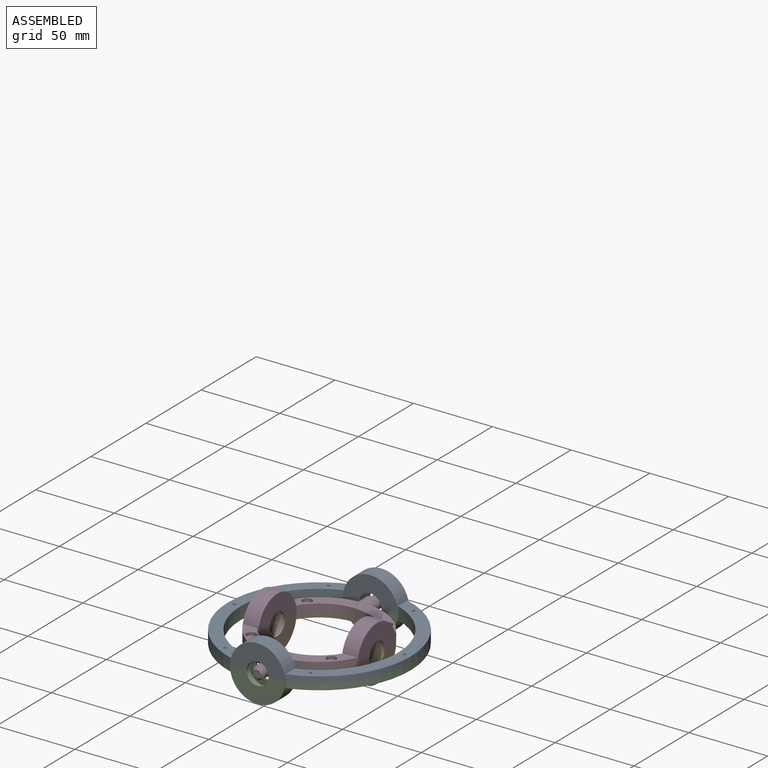
[diagram: assembled view]
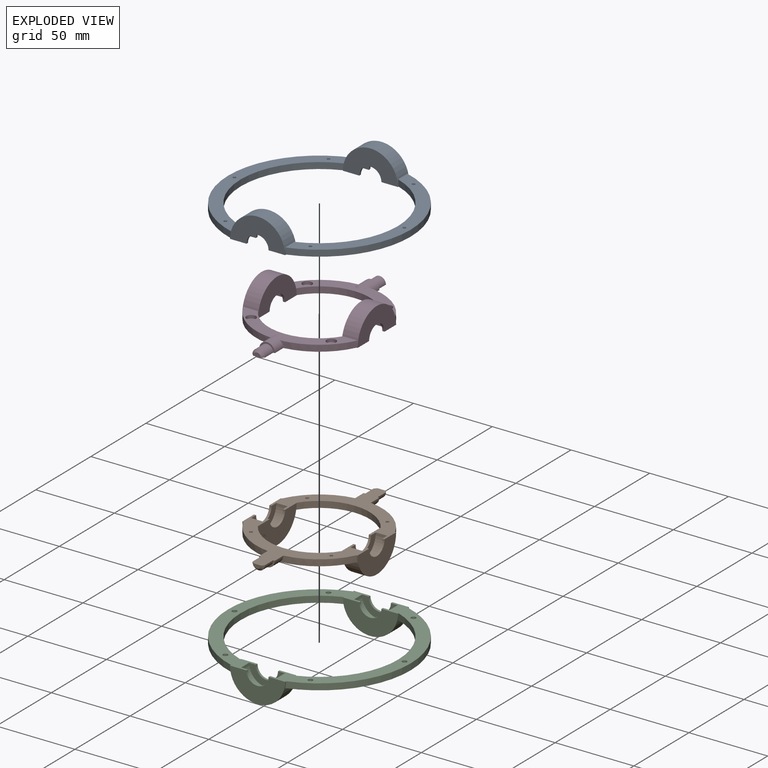
[diagram: exploded view]
GUIDED TOUR — MATED ASSEMBLY (Onshape document ebadb4316456be54d8a99b0d, AutoMate assembly ebadb4316456be54d8a99b0d_91a0d60cb39d424032cc2e9e_dc3a5488f51fbae5bb6552ad_default)

This assembly has 4 components, labeled P0..P3 below (a component is one placed occurrence of a part; the same part can appear more than once), held together by 7 mates. A mate is a constraint between two components; its type names the relative motion it leaves free:
  PLANAR — leaves sliding in the plane through the listed point (normal = the listed direction) and rotation about that normal free,
  REVOLUTE — leaves rotation about the listed axis free (a hinge).
Axis/direction vectors are unit vectors and 'through' points are millimeter coordinates, both in the assembly's world frame.

MATES
  1. REVOLUTE "Revolute 1": P2 <-> P0, axis (0.000, 0.000, 1.000) through (52.98, 1.88, -6.96) mm
  2. REVOLUTE "Revolute 5": P1 <-> P2, axis (0.000, 1.000, 0.000) through (-1.02, 58.08, -6.96) mm
  3. PLANAR "Planar 1": P2 <-> P0, direction (0.000, 0.000, 1.000) through (36.92, 1.88, -6.96) mm
  4. REVOLUTE "Revolute 2": P2 <-> P0, axis (0.000, 0.000, 1.000) through (-55.02, 1.88, -6.96) mm
  5. PLANAR "Planar 2": P1 <-> P3, direction (0.000, 0.000, 1.000) through (-1.02, -28.29, -6.96) mm
  6. REVOLUTE "Revolute 4": P3 <-> P1, axis (0.000, 0.000, -1.000) through (24.43, 27.13, -6.96) mm
  7. REVOLUTE "Revolute 3": P3 <-> P1, axis (0.000, 0.000, -1.000) through (-26.48, -23.78, -6.96) mm

ASSEMBLY ORDER
  1. P2 — the base component [order verified]
  2. P1 [order verified]
  3. P0 [order verified]
  4. P3 [order verified]
(P0 verified with a relaxed clearance tolerance: the source model stores slight part interference there.)
Order-tag legend:
  [order verified] — this step's position reverses a verified removal order: the component was checked to insert without passing through the ones already placed.

Of the 4 components, 4 carry the full construction recipe — the FeatureScript program that regenerates the part's solid from scratch; the rest are supplied as boundary geometry only.
Each toured component is shown spotlighted twice — in the assembled view, then in the exploded view, where a leader line traces a displaced component back to its assembled socket (saturated green if recipe-attached, orange if geometry-only; every other component desaturated gray) — followed by its recipe or geometry summary and the mates that hold it.
NOTE — this tour is split across 2 documents so each fits a 32k-token context. This is document 1: the component sections continue in the remaining 1 document, each repeating the header above.
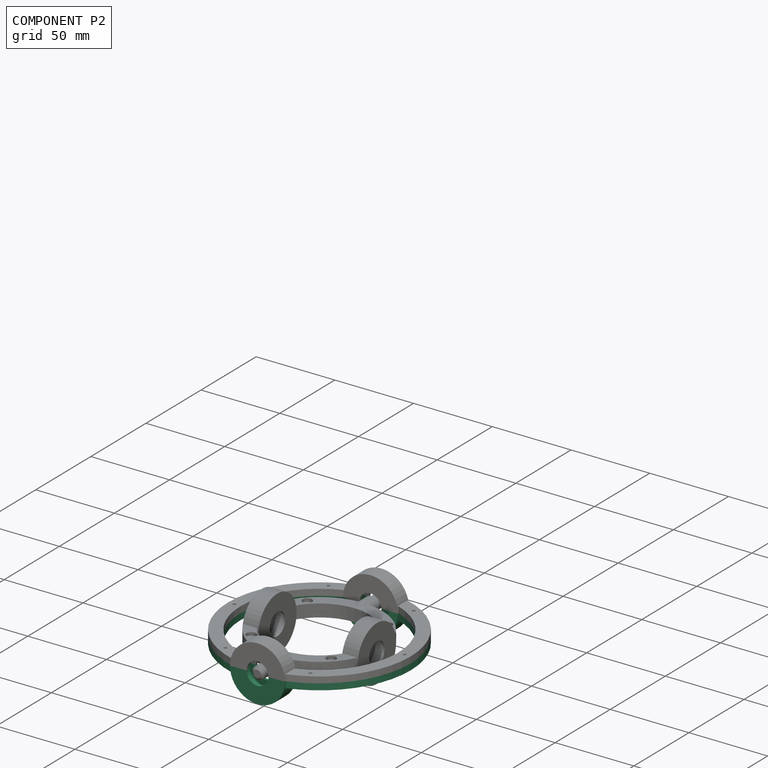
[diagram: component P2 — assembled]
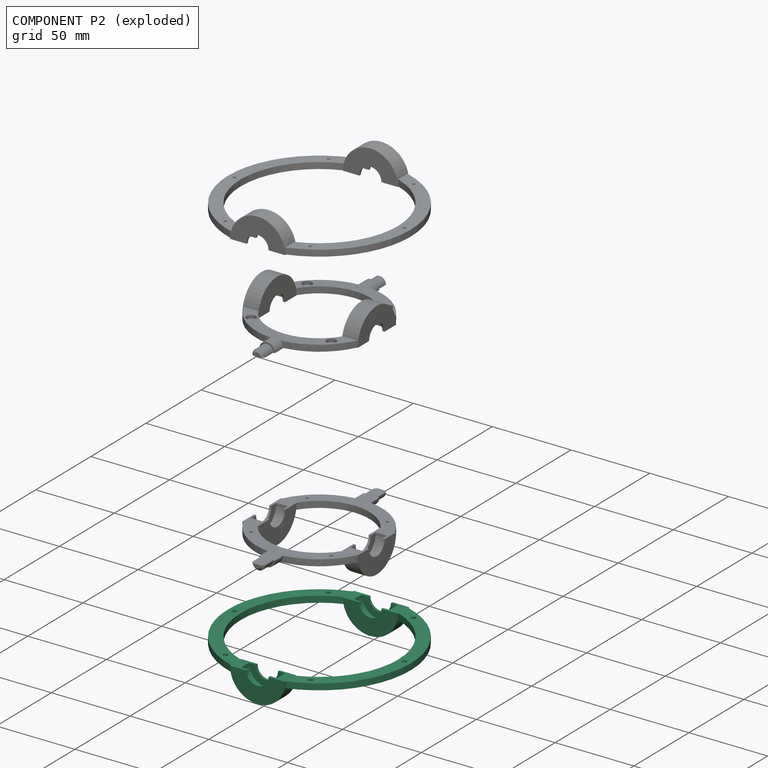
[diagram: component P2 — exploded]
COMPONENT P2 — recipe-attached (CADFS 00322566, mesh-verified: the recipe's output STEP matches this component's geometry to below the mesh-comparison resolution (tessellation chordal tolerance ~0.244 mm)).
Held by: REVOLUTE mate "Revolute 1" to P0; REVOLUTE mate "Revolute 5" to P1; PLANAR mate "Planar 1" to P0; REVOLUTE mate "Revolute 2" to P0.
Construction recipe (FeatureScript — the CAD program that rebuilds this solid; sketch coordinates are in the units given by the * unit suffixes, e.g. mm):

FeatureScript 1511;
import(path : "onshape/std/geometry.fs", version : "1511.0");
import(path : "onshape/std/common.fs", version : "1511.0");
const mm = millimeter;
const VERTEX = EntityType.VERTEX;
const EDGE = EntityType.EDGE;
const FACE = EntityType.FACE;
const BODY = EntityType.BODY;
function v(x, y){return vector(x, y);}
function OD(order){return orderDisambiguation(order);}
function OSD(set){return originalSetDisambiguation(set);}
function TD(topology){return topologyDisambiguation(topology);}
function TDD(query){return trueDependencyDisambiguation(query);}
function sQuery(a, b, c) {return sketchEntityQuery(a, b, c);}

annotation { "Feature Type Name" : "Feature", "Feature Type Description" : "" }
export const myFeature = defineFeature(function(context is Context, id is Id, definition is map)
    precondition{}
    {
        {
            var Q0;
            Q0=qCreatedBy(makeId("Top.planeOp"),FACE);
            var sketch = newSketch(context, id + "F0", { "sketchPlane" : qUnion([Q0])});
            skCircle(sketch, "E0", {"center": v(0, 0) * mm, "radius": 50 * mm});
            skCircle(sketch, "E1", {"center": v(0, 0) * mm, "radius": 58 * mm});
            skSolve(sketch);
        }
        {
            var Q0;
            Q0 = qSketchRegion(id + "F0", true);
            extrude(context, id + "F1", {"entities" : qUnion([Q0]), "depth" : 4 * mm, "hasSecondDirection" : true, "secondDirectionOppositeDirection" : true, "secondDirectionDepth" : 4 * mm});
        }
        {
            var Q0;
            Q0=qCreatedBy(makeId("Front.planeOp"),FACE);
            cPlane(context, id + "F2", {"entities" : qUnion([Q0]), "cplaneType" : CPlaneType.OFFSET, "offset" : 54.8 * mm, "width" : 150 * mm, "height" : 150 * mm});
        }
        {
            var Q0;
            Q0=qCreatedBy(id+"F2.planeOp",FACE);
            var sketch = newSketch(context, id + "F3", { "sketchPlane" : qUnion([Q0])});
            skCircle(sketch, "E2", {"center": v(0, 0) * mm, "radius": 11.35 * mm});
            skCircle(sketch, "E3", {"center": v(0, 0) * mm, "radius": 17.5 * mm});
            skSolve(sketch);
        }
        {
            var Q0;
            Q0=makeQuery(id+"F3.imprint","IMPRINT",FACE,{"disambiguationData":[TD([[makeQuery(id+"F3.imprint","IMPRINT",EDGE,{"derivedFrom":sQuery(id+"F3.wireOp",EDGE,"E2")}),1.0]])]});
            var Q1;
            Q1=makeQuery(id+"F3.imprint","IMPRINT",FACE,{"disambiguationData":[TD([[makeQuery(id+"F3.imprint","IMPRINT",EDGE,{"derivedFrom":sQuery(id+"F3.wireOp",EDGE,"E2")}),-1.0]])]});
            extrude(context, id + "F4", {"entities" : qUnion([Q0, Q1]), "operationType" : NewBodyOperationType.REMOVE, "oppositeDirection" : true, "depth" : 25 * mm, "hasSecondDirection" : true, "secondDirectionOppositeDirection" : false, "secondDirectionDepth" : 25 * mm});
        }
        {
            var Q0;
            Q0=makeQuery(id+"F3.imprint","IMPRINT",FACE,{"disambiguationData":[TD([[makeQuery(id+"F3.imprint","IMPRINT",EDGE,{"derivedFrom":sQuery(id+"F3.wireOp",EDGE,"E2")}),-1.0]])]});
            extrude(context, id + "F5", {"entities" : qUnion([Q0]), "operationType" : NewBodyOperationType.ADD, "oppositeDirection" : true, "depth" : 7.2 * mm});
        }
        {
            var Q0;
            Q0=makeQuery(id+"F5.opExtrude","CAP_FACE",FACE,{"disambiguationData":[OSD([sQuery(id+"F3.wireOp",EDGE,"E2"),sQuery(id+"F3.wireOp",EDGE,"E3")])],"isStart":true});
            var sketch = newSketch(context, id + "F6", { "sketchPlane" : qUnion([Q0])});
            skCircle(sketch, "E4", {"center": v(0, 0) * mm, "radius": 7 * mm});
            skCircle(sketch, "E5", {"center": v(0, 0) * mm, "radius": 17.5 * mm});
            skSolve(sketch);
        }
        {
            var Q0;
            Q0=makeQuery(id+"F6.imprint","IMPRINT",FACE,{"disambiguationData":[TD([[makeQuery(id+"F6.imprint","IMPRINT",EDGE,{"derivedFrom":sQuery(id+"F6.wireOp",EDGE,"E4")}),-1.0]])]});
            var Q1;
            Q1=makeQuery(id+"F6.imprint","IMPRINT",FACE,{"disambiguationData":[TD([[makeQuery(id+"F6.imprint","IMPRINT",EDGE,{"derivedFrom":sQuery(id+"F6.wireOp",EDGE,"E5")}),1.0]])]});
            extrude(context, id + "F7", {"entities" : qUnion([Q0, Q1]), "operationType" : NewBodyOperationType.ADD, "depth" : 1.4 * mm});
        }
        {
            var Q0;
            Q0=makeQuery(id+"F5.opExtrude","CAP_FACE",FACE,{"disambiguationData":[OSD([sQuery(id+"F3.wireOp",EDGE,"E2"),sQuery(id+"F3.wireOp",EDGE,"E3")])],"isStart":false});
            var sketch = newSketch(context, id + "F8", { "sketchPlane" : qUnion([Q0])});
            skCircle(sketch, "E6", {"center": v(0, 0) * mm, "radius": 7 * mm});
            skCircle(sketch, "E7", {"center": v(0, 0) * mm, "radius": 17.5 * mm});
            skSolve(sketch);
        }
        {
            var Q0;
            Q0=makeQuery(id+"F8.imprint","IMPRINT",FACE,{"disambiguationData":[TD([[makeQuery(id+"F8.imprint","IMPRINT",EDGE,{"derivedFrom":sQuery(id+"F8.wireOp",EDGE,"E7")}),-1.0]])]});
            var Q1;
            Q1=makeQuery(id+"F8.imprint","IMPRINT",FACE,{"disambiguationData":[TD([[makeQuery(id+"F8.imprint","IMPRINT",EDGE,{"derivedFrom":sQuery(id+"F8.wireOp",EDGE,"E6")}),-1.0]])]});
            extrude(context, id + "F9", {"entities" : qUnion([Q0, Q1]), "operationType" : NewBodyOperationType.ADD, "depth" : 1.4 * mm});
        }
        {
            var Q0;
            Q0=qCreatedBy(makeId("Front.planeOp"),FACE);
            cPlane(context, id + "F10", {"entities" : qUnion([Q0]), "cplaneType" : CPlaneType.OFFSET, "offset" : 54.8 * mm, "oppositeDirection" : true, "width" : 150 * mm, "height" : 150 * mm});
        }
        {
            var Q0;
            Q0=qCreatedBy(id+"F10.planeOp",FACE);
            var sketch = newSketch(context, id + "F11", { "sketchPlane" : qUnion([Q0])});
            skCircle(sketch, "E8", {"center": v(0, 0) * mm, "radius": 17.5 * mm});
            skCircle(sketch, "E9", {"center": v(0, 0) * mm, "radius": 11.35 * mm});
            skSolve(sketch);
        }
        {
            var Q0;
            Q0=makeQuery(id+"F11.imprint","IMPRINT",FACE,{"disambiguationData":[TD([[makeQuery(id+"F11.imprint","IMPRINT",EDGE,{"derivedFrom":sQuery(id+"F11.wireOp",EDGE,"E8")}),1.0]])]});
            var Q1;
            Q1=makeQuery(id+"F11.imprint","IMPRINT",FACE,{"disambiguationData":[TD([[makeQuery(id+"F11.imprint","IMPRINT",EDGE,{"derivedFrom":sQuery(id+"F11.wireOp",EDGE,"E9")}),1.0]])]});
            extrude(context, id + "F12", {"entities" : qUnion([Q0, Q1]), "operationType" : NewBodyOperationType.REMOVE, "depth" : 25 * mm, "hasSecondDirection" : true, "secondDirectionOppositeDirection" : true, "secondDirectionDepth" : 25 * mm});
        }
        {
            var Q0;
            Q0=makeQuery(id+"F11.imprint","IMPRINT",FACE,{"disambiguationData":[TD([[makeQuery(id+"F11.imprint","IMPRINT",EDGE,{"derivedFrom":sQuery(id+"F11.wireOp",EDGE,"E8")}),1.0]])]});
            extrude(context, id + "F13", {"entities" : qUnion([Q0]), "operationType" : NewBodyOperationType.ADD, "depth" : 7.2 * mm});
        }
        {
            var Q0;
            Q0=makeQuery(id+"F13.opExtrude","CAP_FACE",FACE,{"disambiguationData":[OSD([sQuery(id+"F11.wireOp",EDGE,"E8"),sQuery(id+"F11.wireOp",EDGE,"E9")])],"isStart":true});
            var sketch = newSketch(context, id + "F14", { "sketchPlane" : qUnion([Q0])});
            skCircle(sketch, "E10", {"center": v(0, 0) * mm, "radius": 7 * mm});
            skCircle(sketch, "E11", {"center": v(0, 0) * mm, "radius": 17.5 * mm});
            skSolve(sketch);
        }
        {
            var Q0;
            Q0=makeQuery(id+"F14.imprint","IMPRINT",FACE,{"disambiguationData":[TD([[makeQuery(id+"F14.imprint","IMPRINT",EDGE,{"derivedFrom":makeQuery(id+"F13.opExtrude","CAP_EDGE",EDGE,{"disambiguationData":[OSD([sQuery(id+"F11.wireOp",EDGE,"E9")])],"isStart":true})}),1.0]])]});
            var Q1;
            Q1=makeQuery(id+"F14.imprint","IMPRINT",FACE,{"disambiguationData":[TD([[makeQuery(id+"F14.imprint","IMPRINT",EDGE,{"derivedFrom":sQuery(id+"F14.wireOp",EDGE,"E10")}),-1.0]])]});
            extrude(context, id + "F15", {"entities" : qUnion([Q0, Q1]), "operationType" : NewBodyOperationType.ADD, "depth" : 1.4 * mm});
        }
        {
            var Q0;
            Q0=makeQuery(id+"F13.opExtrude","CAP_FACE",FACE,{"disambiguationData":[OSD([sQuery(id+"F11.wireOp",EDGE,"E8"),sQuery(id+"F11.wireOp",EDGE,"E9")])],"isStart":false});
            var sketch = newSketch(context, id + "F16", { "sketchPlane" : qUnion([Q0])});
            skCircle(sketch, "E12", {"center": v(0, 0) * mm, "radius": 7 * mm});
            skCircle(sketch, "E13", {"center": v(0, 0) * mm, "radius": 17.5 * mm});
            skSolve(sketch);
        }
        {
            var Q0;
            Q0=makeQuery(id+"F16.imprint","IMPRINT",FACE,{"disambiguationData":[TD([[makeQuery(id+"F16.imprint","IMPRINT",EDGE,{"derivedFrom":sQuery(id+"F16.wireOp",EDGE,"E12")}),-1.0]])]});
            var Q1;
            Q1=makeQuery(id+"F16.imprint","IMPRINT",FACE,{"disambiguationData":[TD([[makeQuery(id+"F16.imprint","IMPRINT",EDGE,{"derivedFrom":sQuery(id+"F16.wireOp",EDGE,"E13")}),1.0]])]});
            extrude(context, id + "F17", {"entities" : qUnion([Q0, Q1]), "operationType" : NewBodyOperationType.ADD, "depth" : 1.4 * mm});
        }
        {
            var Q0;
            Q0=makeQuery(id+"F12.boolean.opBoolean","SPLIT",FACE,{"disambiguationData":[OD(0.0)],"derivedFrom":makeQuery(id+"F1.opExtrude","CAP_FACE",FACE,{"disambiguationData":[OSD([sQuery(id+"F0.wireOp",EDGE,"E0"),sQuery(id+"F0.wireOp",EDGE,"E1")])],"isStart":false})});
            var sketch = newSketch(context, id + "F18", { "sketchPlane" : qUnion([Q0])});
            skLineSegment(sketch, "E14", {"start": v(0, 0) * mm, "end": v(-50, 0) * mm, "construction": true});
            skLineSegment(sketch, "E15", {"start": v(-50, 0) * mm, "end": v(-58, 0) * mm, "construction": true});
            skCircle(sketch, "E16", {"center": v(-54, 0) * mm, "radius": 3 * mm});
            skCircle(sketch, "E17", {"center": v(-54, 0) * mm, "radius": 1.5 * mm});
            skCircle(sketch, "E18", {"center": v(-54, 0) * mm, "radius": 1 * mm});
            skCircle(sketch, "E19.1.0", {"center": v(-27, -46.77) * mm, "radius": 3 * mm});
            skCircle(sketch, "E19.1.1", {"center": v(-27, -46.77) * mm, "radius": 1.5 * mm});
            skCircle(sketch, "E19.1.2", {"center": v(-27, -46.77) * mm, "radius": 1 * mm});
            skCircle(sketch, "E19.2.0", {"center": v(27, -46.77) * mm, "radius": 3 * mm});
            skCircle(sketch, "E19.2.1", {"center": v(27, -46.77) * mm, "radius": 1.5 * mm});
            skCircle(sketch, "E19.2.2", {"center": v(27, -46.77) * mm, "radius": 1 * mm});
            skCircle(sketch, "E19.3.0", {"center": v(54, 0) * mm, "radius": 3 * mm});
            skCircle(sketch, "E19.3.1", {"center": v(54, 0) * mm, "radius": 1.5 * mm});
            skCircle(sketch, "E19.3.2", {"center": v(54, 0) * mm, "radius": 1 * mm});
            skCircle(sketch, "E19.4.0", {"center": v(27, 46.77) * mm, "radius": 3 * mm});
            skCircle(sketch, "E19.4.1", {"center": v(27, 46.77) * mm, "radius": 1.5 * mm});
            skCircle(sketch, "E19.4.2", {"center": v(27, 46.77) * mm, "radius": 1 * mm});
            skCircle(sketch, "E19.5.0", {"center": v(-27, 46.77) * mm, "radius": 3 * mm});
            skCircle(sketch, "E19.5.1", {"center": v(-27, 46.77) * mm, "radius": 1.5 * mm});
            skCircle(sketch, "E19.5.2", {"center": v(-27, 46.77) * mm, "radius": 1 * mm});
            skPoint(sketch, "E19.center", {"position": v(0, 0) * mm});
            skSolve(sketch);
        }
        {
            var Q0;
            Q0=makeQuery(id+"F18.imprint","IMPRINT",FACE,{"disambiguationData":[TD([[makeQuery(id+"F18.imprint","IMPRINT",EDGE,{"derivedFrom":sQuery(id+"F18.wireOp",EDGE,"E18")}),1.0]])]});
            var Q1;
            Q1=makeQuery(id+"F18.imprint","IMPRINT",FACE,{"disambiguationData":[TD([[makeQuery(id+"F18.imprint","IMPRINT",EDGE,{"derivedFrom":sQuery(id+"F18.wireOp",EDGE,"E19.5.2")}),1.0]])]});
            var Q2;
            Q2=makeQuery(id+"F18.imprint","IMPRINT",FACE,{"disambiguationData":[TD([[makeQuery(id+"F18.imprint","IMPRINT",EDGE,{"derivedFrom":sQuery(id+"F18.wireOp",EDGE,"E19.4.2")}),1.0]])]});
            var Q3;
            Q3=makeQuery(id+"F18.imprint","IMPRINT",FACE,{"disambiguationData":[TD([[makeQuery(id+"F18.imprint","IMPRINT",EDGE,{"derivedFrom":sQuery(id+"F18.wireOp",EDGE,"E19.3.2")}),1.0]])]});
            var Q4;
            Q4=makeQuery(id+"F18.imprint","IMPRINT",FACE,{"disambiguationData":[TD([[makeQuery(id+"F18.imprint","IMPRINT",EDGE,{"derivedFrom":sQuery(id+"F18.wireOp",EDGE,"E19.2.2")}),1.0]])]});
            var Q5;
            Q5=makeQuery(id+"F18.imprint","IMPRINT",FACE,{"disambiguationData":[TD([[makeQuery(id+"F18.imprint","IMPRINT",EDGE,{"derivedFrom":sQuery(id+"F18.wireOp",EDGE,"E19.1.2")}),1.0]])]});
            extrude(context, id + "F19", {"entities" : qUnion([Q0, Q1, Q2, Q3, Q4, Q5]), "operationType" : NewBodyOperationType.REMOVE, "oppositeDirection" : true, "depth" : 25 * mm});
        }
        {
            var Q0;
            Q0=makeQuery(id+"F18.imprint","IMPRINT",FACE,{"disambiguationData":[TD([[makeQuery(id+"F18.imprint","IMPRINT",EDGE,{"derivedFrom":sQuery(id+"F18.wireOp",EDGE,"E17")}),1.0]])]});
            var Q1;
            Q1=makeQuery(id+"F18.imprint","IMPRINT",FACE,{"disambiguationData":[TD([[makeQuery(id+"F18.imprint","IMPRINT",EDGE,{"derivedFrom":sQuery(id+"F18.wireOp",EDGE,"E19.5.1")}),1.0]])]});
            var Q2;
            Q2=makeQuery(id+"F18.imprint","IMPRINT",FACE,{"disambiguationData":[TD([[makeQuery(id+"F18.imprint","IMPRINT",EDGE,{"derivedFrom":sQuery(id+"F18.wireOp",EDGE,"E19.4.1")}),1.0]])]});
            var Q3;
            Q3=makeQuery(id+"F18.imprint","IMPRINT",FACE,{"disambiguationData":[TD([[makeQuery(id+"F18.imprint","IMPRINT",EDGE,{"derivedFrom":sQuery(id+"F18.wireOp",EDGE,"E19.3.1")}),1.0]])]});
            var Q4;
            Q4=makeQuery(id+"F18.imprint","IMPRINT",FACE,{"disambiguationData":[TD([[makeQuery(id+"F18.imprint","IMPRINT",EDGE,{"derivedFrom":sQuery(id+"F18.wireOp",EDGE,"E19.2.1")}),1.0]])]});
            var Q5;
            Q5=makeQuery(id+"F18.imprint","IMPRINT",FACE,{"disambiguationData":[TD([[makeQuery(id+"F18.imprint","IMPRINT",EDGE,{"derivedFrom":sQuery(id+"F18.wireOp",EDGE,"E19.1.1")}),1.0]])]});
            extrude(context, id + "F20", {"entities" : qUnion([Q0, Q1, Q2, Q3, Q4, Q5]), "operationType" : NewBodyOperationType.REMOVE, "oppositeDirection" : true, "depth" : 4 * mm});
        }
        {
            var Q0;
            Q0=makeQuery(id+"F18.imprint","IMPRINT",FACE,{"disambiguationData":[TD([[makeQuery(id+"F18.imprint","IMPRINT",EDGE,{"derivedFrom":sQuery(id+"F18.wireOp",EDGE,"E16")}),1.0]])]});
            var Q1;
            Q1=makeQuery(id+"F18.imprint","IMPRINT",FACE,{"disambiguationData":[TD([[makeQuery(id+"F18.imprint","IMPRINT",EDGE,{"derivedFrom":sQuery(id+"F18.wireOp",EDGE,"E19.1.0")}),1.0]])]});
            var Q2;
            Q2=makeQuery(id+"F18.imprint","IMPRINT",FACE,{"disambiguationData":[TD([[makeQuery(id+"F18.imprint","IMPRINT",EDGE,{"derivedFrom":sQuery(id+"F18.wireOp",EDGE,"E19.2.0")}),1.0]])]});
            var Q3;
            Q3=makeQuery(id+"F18.imprint","IMPRINT",FACE,{"disambiguationData":[TD([[makeQuery(id+"F18.imprint","IMPRINT",EDGE,{"derivedFrom":sQuery(id+"F18.wireOp",EDGE,"E19.3.0")}),1.0]])]});
            var Q4;
            Q4=makeQuery(id+"F18.imprint","IMPRINT",FACE,{"disambiguationData":[TD([[makeQuery(id+"F18.imprint","IMPRINT",EDGE,{"derivedFrom":sQuery(id+"F18.wireOp",EDGE,"E19.4.0")}),1.0]])]});
            var Q5;
            Q5=makeQuery(id+"F18.imprint","IMPRINT",FACE,{"disambiguationData":[TD([[makeQuery(id+"F18.imprint","IMPRINT",EDGE,{"derivedFrom":sQuery(id+"F18.wireOp",EDGE,"E19.5.0")}),1.0]])]});
            extrude(context, id + "F21", {"entities" : qUnion([Q0, Q1, Q2, Q3, Q4, Q5]), "operationType" : NewBodyOperationType.REMOVE, "oppositeDirection" : true, "depth" : 2 * mm});
        }
        {
            var Q0;
            Q0=qCreatedBy(makeId("Top.planeOp"),FACE);
            var sketch = newSketch(context, id + "F22", { "sketchPlane" : qUnion([Q0])});
            skCircle(sketch, "E20", {"center": v(0, 0) * mm, "radius": 72.87 * mm});
            skSolve(sketch);
        }
        {
            var Q0;
            Q0 = qSketchRegion(id + "F22", true);
            extrude(context, id + "F23", {"entities" : qUnion([Q0]), "operationType" : NewBodyOperationType.REMOVE, "oppositeDirection" : true, "depth" : 25 * mm});
        }
    });
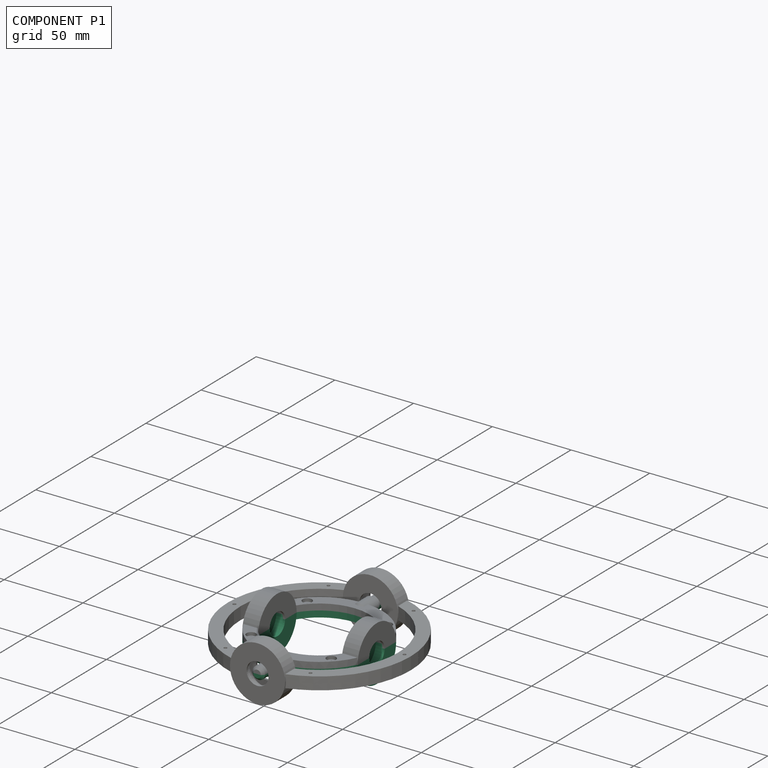
[diagram: component P1 — assembled]
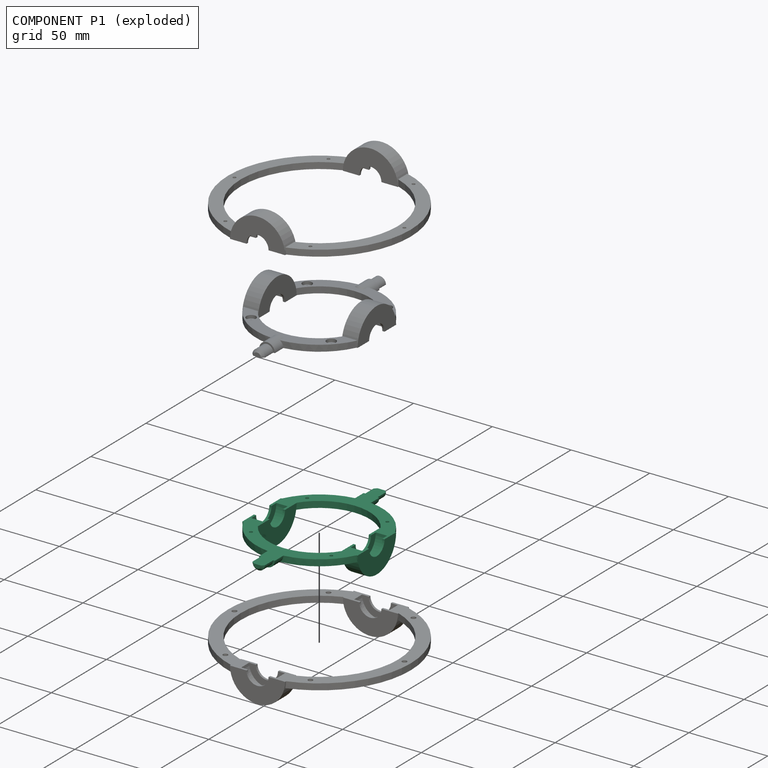
[diagram: component P1 — exploded]
COMPONENT P1 — recipe-attached (CADFS 00322568, mesh-verified: the recipe's output STEP matches this component's geometry to below the mesh-comparison resolution (tessellation chordal tolerance ~0.203 mm)).
Held by: REVOLUTE mate "Revolute 5" to P2; PLANAR mate "Planar 2" to P3; REVOLUTE mate "Revolute 4" to P3; REVOLUTE mate "Revolute 3" to P3.
Construction recipe (FeatureScript — the CAD program that rebuilds this solid; sketch coordinates are in the units given by the * unit suffixes, e.g. mm):

FeatureScript 1511;
import(path : "onshape/std/geometry.fs", version : "1511.0");
import(path : "onshape/std/common.fs", version : "1511.0");
const mm = millimeter;
const VERTEX = EntityType.VERTEX;
const EDGE = EntityType.EDGE;
const FACE = EntityType.FACE;
const BODY = EntityType.BODY;
function v(x, y){return vector(x, y);}
function OD(order){return orderDisambiguation(order);}
function OSD(set){return originalSetDisambiguation(set);}
function TD(topology){return topologyDisambiguation(topology);}
function TDD(query){return trueDependencyDisambiguation(query);}
function sQuery(a, b, c) {return sketchEntityQuery(a, b, c);}

annotation { "Feature Type Name" : "Feature", "Feature Type Description" : "" }
export const myFeature = defineFeature(function(context is Context, id is Id, definition is map)
    precondition{}
    {
        {
            var Q0;
            Q0=qCreatedBy(makeId("Top.planeOp"),FACE);
            var sketch = newSketch(context, id + "F0", { "sketchPlane" : qUnion([Q0])});
            skCircle(sketch, "E0", {"center": v(0, 0) * mm, "radius": 50 * mm});
            skCircle(sketch, "E1", {"center": v(0, 0) * mm, "radius": 58 * mm});
            skSolve(sketch);
        }
        {
            var Q0;
            Q0=qSketchRegion(id+"F0",true);
            extrude(context, id + "F1", {"entities" : qUnion([Q0]), "depth" : 4 * mm, "hasSecondDirection" : true, "secondDirectionOppositeDirection" : true, "secondDirectionDepth" : 4 * mm});
        }
        {
            var Q0;
            Q0=qCreatedBy(makeId("Front.planeOp"),FACE);
            cPlane(context, id + "F2", {"entities" : qUnion([Q0]), "cplaneType" : CPlaneType.OFFSET, "offset" : 54.8 * mm, "width" : 150 * mm, "height" : 150 * mm});
        }
        {
            var Q0;
            Q0=qCreatedBy(id+"F2.planeOp",FACE);
            var sketch = newSketch(context, id + "F3", { "sketchPlane" : qUnion([Q0])});
            skCircle(sketch, "E2", {"center": v(0, 0) * mm, "radius": 11.35 * mm});
            skCircle(sketch, "E3", {"center": v(0, 0) * mm, "radius": 17.5 * mm});
            skSolve(sketch);
        }
        {
            var Q0;
            Q0=makeQuery(id+"F3.imprint","IMPRINT",FACE,{"disambiguationData":[TD([[makeQuery(id+"F3.imprint","IMPRINT",EDGE,{"derivedFrom":sQuery(id+"F3.wireOp",EDGE,"E2")}),1.0]])]});
            var Q1;
            Q1=makeQuery(id+"F3.imprint","IMPRINT",FACE,{"disambiguationData":[TD([[makeQuery(id+"F3.imprint","IMPRINT",EDGE,{"derivedFrom":sQuery(id+"F3.wireOp",EDGE,"E2")}),-1.0]])]});
            extrude(context, id + "F4", {"entities" : qUnion([Q0, Q1]), "operationType" : NewBodyOperationType.REMOVE, "oppositeDirection" : true, "depth" : 25 * mm, "hasSecondDirection" : true, "secondDirectionOppositeDirection" : false, "secondDirectionDepth" : 25 * mm});
        }
        {
            var Q0;
            Q0=makeQuery(id+"F3.imprint","IMPRINT",FACE,{"disambiguationData":[TD([[makeQuery(id+"F3.imprint","IMPRINT",EDGE,{"derivedFrom":sQuery(id+"F3.wireOp",EDGE,"E2")}),-1.0]])]});
            extrude(context, id + "F5", {"entities" : qUnion([Q0]), "operationType" : NewBodyOperationType.ADD, "oppositeDirection" : true, "depth" : 7.2 * mm});
        }
        {
            var Q0;
            Q0=makeQuery(id+"F5.opExtrude","CAP_FACE",FACE,{"disambiguationData":[OSD([sQuery(id+"F3.wireOp",EDGE,"E2"),sQuery(id+"F3.wireOp",EDGE,"E3")])],"isStart":true});
            var sketch = newSketch(context, id + "F6", { "sketchPlane" : qUnion([Q0])});
            skCircle(sketch, "E4", {"center": v(0, 0) * mm, "radius": 7 * mm});
            skCircle(sketch, "E5", {"center": v(0, 0) * mm, "radius": 17.5 * mm});
            skSolve(sketch);
        }
        {
            var Q0;
            Q0=makeQuery(id+"F6.imprint","IMPRINT",FACE,{"disambiguationData":[TD([[makeQuery(id+"F6.imprint","IMPRINT",EDGE,{"derivedFrom":sQuery(id+"F6.wireOp",EDGE,"E4")}),-1.0]])]});
            var Q1;
            Q1=makeQuery(id+"F6.imprint","IMPRINT",FACE,{"disambiguationData":[TD([[makeQuery(id+"F6.imprint","IMPRINT",EDGE,{"derivedFrom":sQuery(id+"F6.wireOp",EDGE,"E5")}),1.0]])]});
            extrude(context, id + "F7", {"entities" : qUnion([Q0, Q1]), "operationType" : NewBodyOperationType.ADD, "depth" : 1.4 * mm});
        }
        {
            var Q0;
            Q0=makeQuery(id+"F5.opExtrude","CAP_FACE",FACE,{"disambiguationData":[OSD([sQuery(id+"F3.wireOp",EDGE,"E2"),sQuery(id+"F3.wireOp",EDGE,"E3")])],"isStart":false});
            var sketch = newSketch(context, id + "F8", { "sketchPlane" : qUnion([Q0])});
            skCircle(sketch, "E6", {"center": v(0, 0) * mm, "radius": 7 * mm});
            skCircle(sketch, "E7", {"center": v(0, 0) * mm, "radius": 17.5 * mm});
            skSolve(sketch);
        }
        {
            var Q0;
            Q0=makeQuery(id+"F8.imprint","IMPRINT",FACE,{"disambiguationData":[TD([[makeQuery(id+"F8.imprint","IMPRINT",EDGE,{"derivedFrom":sQuery(id+"F8.wireOp",EDGE,"E7")}),-1.0]])]});
            var Q1;
            Q1=makeQuery(id+"F8.imprint","IMPRINT",FACE,{"disambiguationData":[TD([[makeQuery(id+"F8.imprint","IMPRINT",EDGE,{"derivedFrom":sQuery(id+"F8.wireOp",EDGE,"E6")}),-1.0]])]});
            extrude(context, id + "F9", {"entities" : qUnion([Q0, Q1]), "operationType" : NewBodyOperationType.ADD, "depth" : 1.4 * mm});
        }
        {
            var Q0;
            Q0=qCreatedBy(makeId("Front.planeOp"),FACE);
            cPlane(context, id + "F10", {"entities" : qUnion([Q0]), "cplaneType" : CPlaneType.OFFSET, "offset" : 54.8 * mm, "oppositeDirection" : true, "width" : 150 * mm, "height" : 150 * mm});
        }
        {
            var Q0;
            Q0=qCreatedBy(id+"F10.planeOp",FACE);
            var sketch = newSketch(context, id + "F11", { "sketchPlane" : qUnion([Q0])});
            skCircle(sketch, "E8", {"center": v(0, 0) * mm, "radius": 17.5 * mm});
            skCircle(sketch, "E9", {"center": v(0, 0) * mm, "radius": 11.35 * mm});
            skSolve(sketch);
        }
        {
            var Q0;
            Q0=makeQuery(id+"F11.imprint","IMPRINT",FACE,{"disambiguationData":[TD([[makeQuery(id+"F11.imprint","IMPRINT",EDGE,{"derivedFrom":sQuery(id+"F11.wireOp",EDGE,"E8")}),1.0]])]});
            var Q1;
            Q1=makeQuery(id+"F11.imprint","IMPRINT",FACE,{"disambiguationData":[TD([[makeQuery(id+"F11.imprint","IMPRINT",EDGE,{"derivedFrom":sQuery(id+"F11.wireOp",EDGE,"E9")}),1.0]])]});
            extrude(context, id + "F12", {"entities" : qUnion([Q0, Q1]), "operationType" : NewBodyOperationType.REMOVE, "depth" : 25 * mm, "hasSecondDirection" : true, "secondDirectionOppositeDirection" : true, "secondDirectionDepth" : 25 * mm});
        }
        {
            var Q0;
            Q0=makeQuery(id+"F11.imprint","IMPRINT",FACE,{"disambiguationData":[TD([[makeQuery(id+"F11.imprint","IMPRINT",EDGE,{"derivedFrom":sQuery(id+"F11.wireOp",EDGE,"E8")}),1.0]])]});
            extrude(context, id + "F13", {"entities" : qUnion([Q0]), "operationType" : NewBodyOperationType.ADD, "depth" : 7.2 * mm});
        }
        {
            var Q0;
            Q0=makeQuery(id+"F13.opExtrude","CAP_FACE",FACE,{"disambiguationData":[OSD([sQuery(id+"F11.wireOp",EDGE,"E8"),sQuery(id+"F11.wireOp",EDGE,"E9")])],"isStart":true});
            var sketch = newSketch(context, id + "F14", { "sketchPlane" : qUnion([Q0])});
            skCircle(sketch, "E10", {"center": v(0, 0) * mm, "radius": 7 * mm});
            skCircle(sketch, "E11", {"center": v(0, 0) * mm, "radius": 17.5 * mm});
            skSolve(sketch);
        }
        {
            var Q0;
            Q0=makeQuery(id+"F14.imprint","IMPRINT",FACE,{"disambiguationData":[TD([[makeQuery(id+"F14.imprint","IMPRINT",EDGE,{"derivedFrom":makeQuery(id+"F13.opExtrude","CAP_EDGE",EDGE,{"disambiguationData":[OSD([sQuery(id+"F11.wireOp",EDGE,"E9")])],"isStart":true})}),1.0]])]});
            var Q1;
            Q1=makeQuery(id+"F14.imprint","IMPRINT",FACE,{"disambiguationData":[TD([[makeQuery(id+"F14.imprint","IMPRINT",EDGE,{"derivedFrom":sQuery(id+"F14.wireOp",EDGE,"E10")}),-1.0]])]});
            extrude(context, id + "F15", {"entities" : qUnion([Q0, Q1]), "operationType" : NewBodyOperationType.ADD, "depth" : 1.4 * mm});
        }
        {
            var Q0;
            Q0=makeQuery(id+"F13.opExtrude","CAP_FACE",FACE,{"disambiguationData":[OSD([sQuery(id+"F11.wireOp",EDGE,"E8"),sQuery(id+"F11.wireOp",EDGE,"E9")])],"isStart":false});
            var sketch = newSketch(context, id + "F16", { "sketchPlane" : qUnion([Q0])});
            skCircle(sketch, "E12", {"center": v(0, 0) * mm, "radius": 7 * mm});
            skCircle(sketch, "E13", {"center": v(0, 0) * mm, "radius": 17.5 * mm});
            skSolve(sketch);
        }
        {
            var Q0;
            Q0=makeQuery(id+"F16.imprint","IMPRINT",FACE,{"disambiguationData":[TD([[makeQuery(id+"F16.imprint","IMPRINT",EDGE,{"derivedFrom":sQuery(id+"F16.wireOp",EDGE,"E12")}),-1.0]])]});
            var Q1;
            Q1=makeQuery(id+"F16.imprint","IMPRINT",FACE,{"disambiguationData":[TD([[makeQuery(id+"F16.imprint","IMPRINT",EDGE,{"derivedFrom":sQuery(id+"F16.wireOp",EDGE,"E13")}),1.0]])]});
            extrude(context, id + "F17", {"entities" : qUnion([Q0, Q1]), "operationType" : NewBodyOperationType.ADD, "depth" : 1.4 * mm});
        }
        {
            var Q0;
            Q0=makeQuery(id+"F12.boolean.opBoolean","SPLIT",FACE,{"disambiguationData":[OD(0.0)],"derivedFrom":makeQuery(id+"F1.opExtrude","CAP_FACE",FACE,{"disambiguationData":[OSD([sQuery(id+"F0.wireOp",EDGE,"E0"),sQuery(id+"F0.wireOp",EDGE,"E1")])],"isStart":false})});
            var sketch = newSketch(context, id + "F18", { "sketchPlane" : qUnion([Q0])});
            skLineSegment(sketch, "E14", {"start": v(0, 0) * mm, "end": v(-50, 0) * mm, "construction": true});
            skLineSegment(sketch, "E15", {"start": v(-50, 0) * mm, "end": v(-58, 0) * mm, "construction": true});
            skCircle(sketch, "E16", {"center": v(-54, 0) * mm, "radius": 3 * mm});
            skCircle(sketch, "E17", {"center": v(-54, 0) * mm, "radius": 1.5 * mm});
            skCircle(sketch, "E18", {"center": v(-54, 0) * mm, "radius": 1 * mm});
            skCircle(sketch, "E19.1.0", {"center": v(-27, -46.77) * mm, "radius": 3 * mm});
            skCircle(sketch, "E19.1.1", {"center": v(-27, -46.77) * mm, "radius": 1.5 * mm});
            skCircle(sketch, "E19.1.2", {"center": v(-27, -46.77) * mm, "radius": 1 * mm});
            skCircle(sketch, "E19.2.0", {"center": v(27, -46.77) * mm, "radius": 3 * mm});
            skCircle(sketch, "E19.2.1", {"center": v(27, -46.77) * mm, "radius": 1.5 * mm});
            skCircle(sketch, "E19.2.2", {"center": v(27, -46.77) * mm, "radius": 1 * mm});
            skCircle(sketch, "E19.3.0", {"center": v(54, 0) * mm, "radius": 3 * mm});
            skCircle(sketch, "E19.3.1", {"center": v(54, 0) * mm, "radius": 1.5 * mm});
            skCircle(sketch, "E19.3.2", {"center": v(54, 0) * mm, "radius": 1 * mm});
            skCircle(sketch, "E19.4.0", {"center": v(27, 46.77) * mm, "radius": 3 * mm});
            skCircle(sketch, "E19.4.1", {"center": v(27, 46.77) * mm, "radius": 1.5 * mm});
            skCircle(sketch, "E19.4.2", {"center": v(27, 46.77) * mm, "radius": 1 * mm});
            skCircle(sketch, "E19.5.0", {"center": v(-27, 46.77) * mm, "radius": 3 * mm});
            skCircle(sketch, "E19.5.1", {"center": v(-27, 46.77) * mm, "radius": 1.5 * mm});
            skCircle(sketch, "E19.5.2", {"center": v(-27, 46.77) * mm, "radius": 1 * mm});
            skPoint(sketch, "E19.center", {"position": v(0, 0) * mm});
            skSolve(sketch);
        }
        {
            var Q0;
            Q0=makeQuery(id+"F18.imprint","IMPRINT",FACE,{"disambiguationData":[TD([[makeQuery(id+"F18.imprint","IMPRINT",EDGE,{"derivedFrom":sQuery(id+"F18.wireOp",EDGE,"E18")}),1.0]])]});
            var Q1;
            Q1=makeQuery(id+"F18.imprint","IMPRINT",FACE,{"disambiguationData":[TD([[makeQuery(id+"F18.imprint","IMPRINT",EDGE,{"derivedFrom":sQuery(id+"F18.wireOp",EDGE,"E19.5.2")}),1.0]])]});
            var Q2;
            Q2=makeQuery(id+"F18.imprint","IMPRINT",FACE,{"disambiguationData":[TD([[makeQuery(id+"F18.imprint","IMPRINT",EDGE,{"derivedFrom":sQuery(id+"F18.wireOp",EDGE,"E19.4.2")}),1.0]])]});
            var Q3;
            Q3=makeQuery(id+"F18.imprint","IMPRINT",FACE,{"disambiguationData":[TD([[makeQuery(id+"F18.imprint","IMPRINT",EDGE,{"derivedFrom":sQuery(id+"F18.wireOp",EDGE,"E19.3.2")}),1.0]])]});
            var Q4;
            Q4=makeQuery(id+"F18.imprint","IMPRINT",FACE,{"disambiguationData":[TD([[makeQuery(id+"F18.imprint","IMPRINT",EDGE,{"derivedFrom":sQuery(id+"F18.wireOp",EDGE,"E19.2.2")}),1.0]])]});
            var Q5;
            Q5=makeQuery(id+"F18.imprint","IMPRINT",FACE,{"disambiguationData":[TD([[makeQuery(id+"F18.imprint","IMPRINT",EDGE,{"derivedFrom":sQuery(id+"F18.wireOp",EDGE,"E19.1.2")}),1.0]])]});
            extrude(context, id + "F19", {"entities" : qUnion([Q0, Q1, Q2, Q3, Q4, Q5]), "operationType" : NewBodyOperationType.REMOVE, "oppositeDirection" : true, "depth" : 25 * mm});
        }
        {
            var Q0;
            Q0=makeQuery(id+"F18.imprint","IMPRINT",FACE,{"disambiguationData":[TD([[makeQuery(id+"F18.imprint","IMPRINT",EDGE,{"derivedFrom":sQuery(id+"F18.wireOp",EDGE,"E17")}),1.0]])]});
            var Q1;
            Q1=makeQuery(id+"F18.imprint","IMPRINT",FACE,{"disambiguationData":[TD([[makeQuery(id+"F18.imprint","IMPRINT",EDGE,{"derivedFrom":sQuery(id+"F18.wireOp",EDGE,"E19.5.1")}),1.0]])]});
            var Q2;
            Q2=makeQuery(id+"F18.imprint","IMPRINT",FACE,{"disambiguationData":[TD([[makeQuery(id+"F18.imprint","IMPRINT",EDGE,{"derivedFrom":sQuery(id+"F18.wireOp",EDGE,"E19.4.1")}),1.0]])]});
            var Q3;
            Q3=makeQuery(id+"F18.imprint","IMPRINT",FACE,{"disambiguationData":[TD([[makeQuery(id+"F18.imprint","IMPRINT",EDGE,{"derivedFrom":sQuery(id+"F18.wireOp",EDGE,"E19.3.1")}),1.0]])]});
            var Q4;
            Q4=makeQuery(id+"F18.imprint","IMPRINT",FACE,{"disambiguationData":[TD([[makeQuery(id+"F18.imprint","IMPRINT",EDGE,{"derivedFrom":sQuery(id+"F18.wireOp",EDGE,"E19.2.1")}),1.0]])]});
            var Q5;
            Q5=makeQuery(id+"F18.imprint","IMPRINT",FACE,{"disambiguationData":[TD([[makeQuery(id+"F18.imprint","IMPRINT",EDGE,{"derivedFrom":sQuery(id+"F18.wireOp",EDGE,"E19.1.1")}),1.0]])]});
            extrude(context, id + "F20", {"entities" : qUnion([Q0, Q1, Q2, Q3, Q4, Q5]), "operationType" : NewBodyOperationType.REMOVE, "oppositeDirection" : true, "depth" : 4 * mm});
        }
        {
            var Q0;
            Q0=makeQuery(id+"F18.imprint","IMPRINT",FACE,{"disambiguationData":[TD([[makeQuery(id+"F18.imprint","IMPRINT",EDGE,{"derivedFrom":sQuery(id+"F18.wireOp",EDGE,"E16")}),1.0]])]});
            var Q1;
            Q1=makeQuery(id+"F18.imprint","IMPRINT",FACE,{"disambiguationData":[TD([[makeQuery(id+"F18.imprint","IMPRINT",EDGE,{"derivedFrom":sQuery(id+"F18.wireOp",EDGE,"E19.1.0")}),1.0]])]});
            var Q2;
            Q2=makeQuery(id+"F18.imprint","IMPRINT",FACE,{"disambiguationData":[TD([[makeQuery(id+"F18.imprint","IMPRINT",EDGE,{"derivedFrom":sQuery(id+"F18.wireOp",EDGE,"E19.2.0")}),1.0]])]});
            var Q3;
            Q3=makeQuery(id+"F18.imprint","IMPRINT",FACE,{"disambiguationData":[TD([[makeQuery(id+"F18.imprint","IMPRINT",EDGE,{"derivedFrom":sQuery(id+"F18.wireOp",EDGE,"E19.3.0")}),1.0]])]});
            var Q4;
            Q4=makeQuery(id+"F18.imprint","IMPRINT",FACE,{"disambiguationData":[TD([[makeQuery(id+"F18.imprint","IMPRINT",EDGE,{"derivedFrom":sQuery(id+"F18.wireOp",EDGE,"E19.4.0")}),1.0]])]});
            var Q5;
            Q5=makeQuery(id+"F18.imprint","IMPRINT",FACE,{"disambiguationData":[TD([[makeQuery(id+"F18.imprint","IMPRINT",EDGE,{"derivedFrom":sQuery(id+"F18.wireOp",EDGE,"E19.5.0")}),1.0]])]});
            extrude(context, id + "F21", {"entities" : qUnion([Q0, Q1, Q2, Q3, Q4, Q5]), "operationType" : NewBodyOperationType.REMOVE, "oppositeDirection" : true, "depth" : 2 * mm});
        }
        {
            var Q0;
            Q0=qCreatedBy(makeId("Top.planeOp"),FACE);
            var sketch = newSketch(context, id + "F22", { "sketchPlane" : qUnion([Q0])});
            skCircle(sketch, "E20", {"center": v(0, 0) * mm, "radius": 40 * mm});
            skCircle(sketch, "E21", {"center": v(0, 0) * mm, "radius": 32 * mm});
            skSolve(sketch);
        }
        {
            var Q0;
            Q0=qSketchRegion(id+"F22",true);
            extrude(context, id + "F23", {"entities" : qUnion([Q0]), "depth" : 4 * mm, "hasSecondDirection" : true, "secondDirectionOppositeDirection" : true, "secondDirectionDepth" : 4 * mm});
        }
        {
            var Q0;
            Q0=qCreatedBy(makeId("Front.planeOp"),FACE);
            cPlane(context, id + "F24", {"entities" : qUnion([Q0]), "cplaneType" : CPlaneType.OFFSET, "offset" : 35.2 * mm, "width" : 150 * mm, "height" : 150 * mm});
        }
        {
            var Q0;
            Q0=qCreatedBy(id+"F24.planeOp",FACE);
            var sketch = newSketch(context, id + "F25", { "sketchPlane" : qUnion([Q0])});
            skCircle(sketch, "E22.0", {"center": v(0, 0) * mm, "radius": 17.5 * mm});
            skCircle(sketch, "E23.0", {"center": v(0, 0) * mm, "radius": 11.35 * mm});
            skSolve(sketch);
        }
        {
            var Q0;
            Q0=makeQuery(id+"F25.imprint","IMPRINT",FACE,{"disambiguationData":[TD([[makeQuery(id+"F25.imprint","IMPRINT",EDGE,{"derivedFrom":sQuery(id+"F25.wireOp",EDGE,"E22.0")}),1.0]])]});
            var Q1;
            Q1=makeQuery(id+"F25.imprint","IMPRINT",FACE,{"disambiguationData":[TD([[makeQuery(id+"F25.imprint","IMPRINT",EDGE,{"derivedFrom":sQuery(id+"F25.wireOp",EDGE,"E23.0")}),1.0]])]});
            extrude(context, id + "F26", {"entities" : qUnion([Q0, Q1]), "operationType" : NewBodyOperationType.REMOVE, "oppositeDirection" : true, "depth" : 13.4 * mm, "hasSecondDirection" : true, "secondDirectionOppositeDirection" : false, "secondDirectionDepth" : 6.7 * mm});
        }
        {
            var Q0;
            Q0=makeQuery(id+"F25.imprint","IMPRINT",FACE,{"disambiguationData":[TD([[makeQuery(id+"F25.imprint","IMPRINT",EDGE,{"derivedFrom":sQuery(id+"F25.wireOp",EDGE,"E22.0")}),1.0]])]});
            extrude(context, id + "F27", {"entities" : qUnion([Q0]), "operationType" : NewBodyOperationType.ADD, "oppositeDirection" : true, "depth" : 7.2 * mm});
        }
        {
            var Q0;
            Q0=makeQuery(id+"F27.opExtrude","CAP_FACE",FACE,{"disambiguationData":[OSD([sQuery(id+"F25.wireOp",EDGE,"E22.0"),sQuery(id+"F25.wireOp",EDGE,"E23.0")])],"isStart":false});
            var sketch = newSketch(context, id + "F28", { "sketchPlane" : qUnion([Q0])});
            skCircle(sketch, "E24.0", {"center": v(0, 0) * mm, "radius": 7 * mm});
            skCircle(sketch, "E24.1", {"center": v(0, 0) * mm, "radius": 17.5 * mm});
            skSolve(sketch);
        }
        {
            var Q0;
            Q0=makeQuery(id+"F28.imprint","IMPRINT",FACE,{"disambiguationData":[TD([[makeQuery(id+"F28.imprint","IMPRINT",EDGE,{"derivedFrom":makeQuery(id+"F27.opExtrude","CAP_EDGE",EDGE,{"disambiguationData":[OSD([sQuery(id+"F25.wireOp",EDGE,"E23.0")])],"isStart":false})}),1.0]])]});
            var Q1;
            Q1=makeQuery(id+"F28.imprint","IMPRINT",FACE,{"disambiguationData":[TD([[makeQuery(id+"F28.imprint","IMPRINT",EDGE,{"derivedFrom":sQuery(id+"F28.wireOp",EDGE,"E24.0")}),-1.0]])]});
            extrude(context, id + "F29", {"entities" : qUnion([Q0, Q1]), "operationType" : NewBodyOperationType.ADD, "depth" : 1.4 * mm});
        }
        {
            var Q0;
            Q0=makeQuery(id+"F27.opExtrude","CAP_FACE",FACE,{"disambiguationData":[OSD([sQuery(id+"F25.wireOp",EDGE,"E22.0"),sQuery(id+"F25.wireOp",EDGE,"E23.0")])],"isStart":true});
            var sketch = newSketch(context, id + "F30", { "sketchPlane" : qUnion([Q0])});
            skCircle(sketch, "E25.0", {"center": v(0, 0) * mm, "radius": 7 * mm});
            skCircle(sketch, "E25.1", {"center": v(0, 0) * mm, "radius": 17.5 * mm});
            skSolve(sketch);
        }
        {
            var Q0;
            Q0=makeQuery(id+"F30.imprint","IMPRINT",FACE,{"disambiguationData":[TD([[makeQuery(id+"F30.imprint","IMPRINT",EDGE,{"derivedFrom":sQuery(id+"F30.wireOp",EDGE,"E25.1")}),1.0]])]});
            var Q1;
            Q1=makeQuery(id+"F30.imprint","IMPRINT",FACE,{"disambiguationData":[TD([[makeQuery(id+"F30.imprint","IMPRINT",EDGE,{"derivedFrom":sQuery(id+"F30.wireOp",EDGE,"E25.0")}),-1.0]])]});
            extrude(context, id + "F31", {"entities" : qUnion([Q0, Q1]), "operationType" : NewBodyOperationType.ADD, "depth" : 1.4 * mm});
        }
        {
            var Q0;
            Q0=qCreatedBy(makeId("Front.planeOp"),FACE);
            cPlane(context, id + "F32", {"entities" : qUnion([Q0]), "cplaneType" : CPlaneType.OFFSET, "offset" : 35.2 * mm, "oppositeDirection" : true, "width" : 150 * mm, "height" : 150 * mm});
        }
        {
            var Q0;
            Q0=qCreatedBy(id+"F32.planeOp",FACE);
            var sketch = newSketch(context, id + "F33", { "sketchPlane" : qUnion([Q0])});
            skCircle(sketch, "E26.0", {"center": v(0, 0) * mm, "radius": 17.5 * mm});
            skCircle(sketch, "E26.1", {"center": v(0, 0) * mm, "radius": 11.35 * mm});
            skSolve(sketch);
        }
        {
            var Q0;
            Q0=makeQuery(id+"F33.imprint","IMPRINT",FACE,{"disambiguationData":[TD([[makeQuery(id+"F33.imprint","IMPRINT",EDGE,{"derivedFrom":sQuery(id+"F33.wireOp",EDGE,"E26.0")}),1.0]])]});
            var Q1;
            Q1=makeQuery(id+"F33.imprint","IMPRINT",FACE,{"disambiguationData":[TD([[makeQuery(id+"F33.imprint","IMPRINT",EDGE,{"derivedFrom":sQuery(id+"F33.wireOp",EDGE,"E26.1")}),1.0]])]});
            extrude(context, id + "F34", {"entities" : qUnion([Q0, Q1]), "operationType" : NewBodyOperationType.REMOVE, "oppositeDirection" : true, "depth" : 7.2 * mm, "hasSecondDirection" : true, "secondDirectionOppositeDirection" : false, "secondDirectionDepth" : 25 * mm});
        }
        {
            var Q0;
            Q0=makeQuery(id+"F33.imprint","IMPRINT",FACE,{"disambiguationData":[TD([[makeQuery(id+"F33.imprint","IMPRINT",EDGE,{"derivedFrom":sQuery(id+"F33.wireOp",EDGE,"E26.0")}),1.0]])]});
            extrude(context, id + "F35", {"entities" : qUnion([Q0]), "operationType" : NewBodyOperationType.ADD, "depth" : 7.2 * mm});
        }
        {
            var Q0;
            Q0=qCreatedBy(id+"F32.planeOp",FACE);
            var sketch = newSketch(context, id + "F36", { "sketchPlane" : qUnion([Q0])});
            skCircle(sketch, "E27.0", {"center": v(0, 0) * mm, "radius": 7 * mm});
            skCircle(sketch, "E27.1", {"center": v(0, 0) * mm, "radius": 17.5 * mm});
            skSolve(sketch);
        }
        {
            var Q0;
            Q0=makeQuery(id+"F36.imprint","IMPRINT",FACE,{"disambiguationData":[TD([[makeQuery(id+"F36.imprint","IMPRINT",EDGE,{"derivedFrom":sQuery(id+"F36.wireOp",EDGE,"E27.0")}),-1.0]])]});
            extrude(context, id + "F37", {"entities" : qUnion([Q0]), "operationType" : NewBodyOperationType.ADD, "oppositeDirection" : true, "depth" : 1.4 * mm});
        }
        {
            var Q0;
            Q0=makeQuery(id+"F35.opExtrude","CAP_FACE",FACE,{"disambiguationData":[OSD([sQuery(id+"F33.wireOp",EDGE,"E26.0"),sQuery(id+"F33.wireOp",EDGE,"E26.1")])],"isStart":false});
            var sketch = newSketch(context, id + "F38", { "sketchPlane" : qUnion([Q0])});
            skCircle(sketch, "E28.0", {"center": v(0, 0) * mm, "radius": 7 * mm});
            skCircle(sketch, "E28.1", {"center": v(0, 0) * mm, "radius": 17.5 * mm});
            skSolve(sketch);
        }
        {
            var Q0;
            Q0=makeQuery(id+"F38.imprint","IMPRINT",FACE,{"disambiguationData":[TD([[makeQuery(id+"F38.imprint","IMPRINT",EDGE,{"derivedFrom":sQuery(id+"F38.wireOp",EDGE,"E28.0")}),-1.0]])]});
            var Q1;
            Q1=makeQuery(id+"F38.imprint","IMPRINT",FACE,{"disambiguationData":[TD([[makeQuery(id+"F38.imprint","IMPRINT",EDGE,{"derivedFrom":makeQuery(id+"F35.opExtrude","CAP_EDGE",EDGE,{"disambiguationData":[OSD([sQuery(id+"F33.wireOp",EDGE,"E26.1")])],"isStart":false})}),-1.0]])]});
            extrude(context, id + "F39", {"entities" : qUnion([Q0, Q1]), "operationType" : NewBodyOperationType.ADD, "depth" : 1.4 * mm});
        }
        {
            var Q0;
            Q0=qCreatedBy(makeId("Front.planeOp"),FACE);
            var sketch = newSketch(context, id + "F40", { "sketchPlane" : qUnion([Q0])});
            skLineSegment(sketch, "E29", {"start": v(0, 0) * mm, "end": v(0, 51.05) * mm});
            skSolve(sketch);
        }
        {
            var Q0;
            Q0=makeQuery(id+"F23.opExtrude","SWEPT_BODY",BODY,{"disambiguationData":[OSD([sQuery(id+"F22.wireOp",EDGE,"E20"),sQuery(id+"F22.wireOp",EDGE,"E21")])]});
            var Q1;
            Q1=sQuery(id+"F40.wireOp",EDGE,"E29");
            transform(context, id + "F41", {"entities" : qUnion([Q0]), "transformType" : TransformType.ROTATION, "transformAxis" : qUnion([Q1]), "angle" : 90 * degree, "makeCopy" : false});
        }
        {
            var Q0;
            Q0=makeQuery(id+"F17.opExtrude","CAP_FACE",FACE,{"disambiguationData":[OSD([sQuery(id+"F16.wireOp",EDGE,"E12"),sQuery(id+"F16.wireOp",EDGE,"E13")])],"isStart":true});
            var sketch = newSketch(context, id + "F42", { "sketchPlane" : qUnion([Q0])});
            skCircle(sketch, "E30", {"center": v(0, 0) * mm, "radius": 5 * mm});
            skSolve(sketch);
        }
        {
            var Q0;
            Q0=qSketchRegion(id+"F42",true);
            extrude(context, id + "F43", {"entities" : qUnion([Q0]), "operationType" : NewBodyOperationType.ADD, "oppositeDirection" : true, "depth" : 12 * mm, "hasSecondDirection" : true, "secondDirectionOppositeDirection" : false, "secondDirectionDepth" : -.2 * mm});
        }
        {
            var Q0;
            {var subQ0=sQuery(id+"F42.wireOp",EDGE,"E30");Q0=makeQuery(id+"F43.boolean.opBoolean","SPLIT",EDGE,{"disambiguationData":[TD([makeQuery(id+"F23.opExtrude","CAP_FACE",FACE,{"disambiguationData":[OSD([sQuery(id+"F22.wireOp",EDGE,"E20"),sQuery(id+"F22.wireOp",EDGE,"E21")])],"isStart":false})])],"derivedFrom":makeQuery(id+"F43.opExtrude","CAP_EDGE",EDGE,{"disambiguationData":[OSD([subQ0])],"isStart":false})});}
            var Q1;
            {var subQ0=sQuery(id+"F42.wireOp",EDGE,"E30");Q1=makeQuery(id+"F43.boolean.opBoolean","SPLIT",EDGE,{"disambiguationData":[TD([makeQuery(id+"F23.opExtrude","CAP_FACE",FACE,{"disambiguationData":[OSD([sQuery(id+"F22.wireOp",EDGE,"E20"),sQuery(id+"F22.wireOp",EDGE,"E21")])],"isStart":true})])],"derivedFrom":makeQuery(id+"F43.opExtrude","CAP_EDGE",EDGE,{"disambiguationData":[OSD([subQ0])],"isStart":false})});}
            chamfer(context, id + "F44", {"entities" : qUnion([Q0, Q1]), "width" : 1 * mm, "tangentPropagation" : true});
        }
        {
            var Q0;
            Q0=makeQuery(id+"F43.opExtrude","CAP_FACE",FACE,{"disambiguationData":[OSD([sQuery(id+"F42.wireOp",EDGE,"E30")])],"isStart":true});
            var sketch = newSketch(context, id + "F45", { "sketchPlane" : qUnion([Q0])});
            skCircle(sketch, "E31", {"center": v(0, 0) * mm, "radius": 3.95 * mm});
            skSolve(sketch);
        }
        {
            var Q0;
            Q0=makeQuery(id+"F45.imprint","IMPRINT",FACE,{"disambiguationData":[TD([[makeQuery(id+"F45.imprint","IMPRINT",EDGE,{"derivedFrom":sQuery(id+"F45.wireOp",EDGE,"E31")}),1.0]])]});
            extrude(context, id + "F46", {"entities" : qUnion([Q0]), "operationType" : NewBodyOperationType.ADD, "depth" : 9 * mm});
        }
        {
            var Q0;
            Q0=makeQuery(id+"F9.opExtrude","CAP_FACE",FACE,{"disambiguationData":[OSD([sQuery(id+"F8.wireOp",EDGE,"E6"),sQuery(id+"F8.wireOp",EDGE,"E7")])],"isStart":true});
            var sketch = newSketch(context, id + "F47", { "sketchPlane" : qUnion([Q0])});
            skCircle(sketch, "E32", {"center": v(0, 0) * mm, "radius": 5 * mm});
            skSolve(sketch);
        }
        {
            var Q0;
            Q0=qSketchRegion(id+"F47",true);
            extrude(context, id + "F48", {"entities" : qUnion([Q0]), "operationType" : NewBodyOperationType.ADD, "oppositeDirection" : true, "depth" : 12 * mm, "hasSecondDirection" : true, "secondDirectionOppositeDirection" : false, "secondDirectionDepth" : -.2 * mm});
        }
        {
            var Q0;
            {var subQ0=sQuery(id+"F47.wireOp",EDGE,"E32");Q0=makeQuery(id+"F48.boolean.opBoolean","SPLIT",EDGE,{"disambiguationData":[TD([makeQuery(id+"F23.opExtrude","CAP_FACE",FACE,{"disambiguationData":[OSD([sQuery(id+"F22.wireOp",EDGE,"E20"),sQuery(id+"F22.wireOp",EDGE,"E21")])],"isStart":false})])],"derivedFrom":makeQuery(id+"F48.opExtrude","CAP_EDGE",EDGE,{"disambiguationData":[OSD([subQ0])],"isStart":false})});}
            var Q1;
            {var subQ0=sQuery(id+"F47.wireOp",EDGE,"E32");Q1=makeQuery(id+"F48.boolean.opBoolean","SPLIT",EDGE,{"disambiguationData":[TD([makeQuery(id+"F23.opExtrude","CAP_FACE",FACE,{"disambiguationData":[OSD([sQuery(id+"F22.wireOp",EDGE,"E20"),sQuery(id+"F22.wireOp",EDGE,"E21")])],"isStart":true})])],"derivedFrom":makeQuery(id+"F48.opExtrude","CAP_EDGE",EDGE,{"disambiguationData":[OSD([subQ0])],"isStart":false})});}
            chamfer(context, id + "F49", {"entities" : qUnion([Q0, Q1]), "width" : 1 * mm, "tangentPropagation" : true});
        }
        {
            var Q0;
            Q0=makeQuery(id+"F48.opExtrude","CAP_FACE",FACE,{"disambiguationData":[OSD([sQuery(id+"F47.wireOp",EDGE,"E32")])],"isStart":true});
            var sketch = newSketch(context, id + "F50", { "sketchPlane" : qUnion([Q0])});
            skCircle(sketch, "E33", {"center": v(0, 0) * mm, "radius": 3.95 * mm});
            skSolve(sketch);
        }
        {
            var Q0;
            Q0=qSketchRegion(id+"F50",true);
            extrude(context, id + "F51", {"entities" : qUnion([Q0]), "operationType" : NewBodyOperationType.ADD, "depth" : 9 * mm});
        }
        {
            var Q0;
            Q0=makeQuery(id+"F51.opExtrude","CAP_EDGE",EDGE,{"disambiguationData":[OSD([sQuery(id+"F50.wireOp",EDGE,"E33")])],"isStart":false});
            var Q1;
            Q1=makeQuery(id+"F46.opExtrude","CAP_EDGE",EDGE,{"disambiguationData":[OSD([sQuery(id+"F45.wireOp",EDGE,"E31")])],"isStart":false});
            chamfer(context, id + "F52", {"entities" : qUnion([Q0, Q1]), "width" : 1.5 * mm, "tangentPropagation" : true});
        }
        {
            var Q0;
            Q0=makeQuery(id+"F1.opExtrude","SWEPT_BODY",BODY,{"disambiguationData":[OSD([sQuery(id+"F0.wireOp",EDGE,"E0"),sQuery(id+"F0.wireOp",EDGE,"E1")])]});
            deleteBodies(context, id + "F53", {"entities" : qUnion([Q0])});
        }
        {
            var Q0;
            Q0=makeQuery(id+"F34.boolean.opBoolean","SPLIT",FACE,{"disambiguationData":[OD(1.0)],"derivedFrom":makeQuery(id+"F23.opExtrude","CAP_FACE",FACE,{"disambiguationData":[OSD([sQuery(id+"F22.wireOp",EDGE,"E20"),sQuery(id+"F22.wireOp",EDGE,"E21")])],"isStart":false})});
            var sketch = newSketch(context, id + "F54", { "sketchPlane" : qUnion([Q0])});
            skLineSegment(sketch, "E34", {"start": v(0, 0) * mm, "end": v(-25.46, 25.46) * mm, "construction": true});
            skCircle(sketch, "E35", {"center": v(-25.46, 25.46) * mm, "radius": 3 * mm});
            skCircle(sketch, "E36", {"center": v(-25.46, 25.46) * mm, "radius": 1.5 * mm});
            skCircle(sketch, "E37", {"center": v(-25.46, 25.46) * mm, "radius": 1 * mm});
            skCircle(sketch, "E38.1.0", {"center": v(-25.46, -25.46) * mm, "radius": 3 * mm});
            skCircle(sketch, "E38.1.1", {"center": v(-25.46, -25.46) * mm, "radius": 1.5 * mm});
            skCircle(sketch, "E38.1.2", {"center": v(-25.46, -25.46) * mm, "radius": 1 * mm});
            skCircle(sketch, "E38.2.0", {"center": v(25.46, -25.46) * mm, "radius": 3 * mm});
            skCircle(sketch, "E38.2.1", {"center": v(25.46, -25.46) * mm, "radius": 1.5 * mm});
            skCircle(sketch, "E38.2.2", {"center": v(25.46, -25.46) * mm, "radius": 1 * mm});
            skCircle(sketch, "E38.3.0", {"center": v(25.46, 25.46) * mm, "radius": 3 * mm});
            skCircle(sketch, "E38.3.1", {"center": v(25.46, 25.46) * mm, "radius": 1.5 * mm});
            skCircle(sketch, "E38.3.2", {"center": v(25.46, 25.46) * mm, "radius": 1 * mm});
            skPoint(sketch, "E38.center", {"position": v(0, 0) * mm});
            skSolve(sketch);
        }
        {
            var Q0;
            Q0=makeQuery(id+"F54.imprint","IMPRINT",FACE,{"disambiguationData":[TD([[makeQuery(id+"F54.imprint","IMPRINT",EDGE,{"derivedFrom":sQuery(id+"F54.wireOp",EDGE,"E37")}),1.0]])]});
            var Q1;
            Q1=makeQuery(id+"F54.imprint","IMPRINT",FACE,{"disambiguationData":[TD([[makeQuery(id+"F54.imprint","IMPRINT",EDGE,{"derivedFrom":sQuery(id+"F54.wireOp",EDGE,"E38.3.2")}),1.0]])]});
            var Q2;
            Q2=makeQuery(id+"F54.imprint","IMPRINT",FACE,{"disambiguationData":[TD([[makeQuery(id+"F54.imprint","IMPRINT",EDGE,{"derivedFrom":sQuery(id+"F54.wireOp",EDGE,"E38.2.2")}),1.0]])]});
            var Q3;
            Q3=makeQuery(id+"F54.imprint","IMPRINT",FACE,{"disambiguationData":[TD([[makeQuery(id+"F54.imprint","IMPRINT",EDGE,{"derivedFrom":sQuery(id+"F54.wireOp",EDGE,"E38.1.2")}),1.0]])]});
            extrude(context, id + "F55", {"entities" : qUnion([Q0, Q1, Q2, Q3]), "operationType" : NewBodyOperationType.REMOVE, "oppositeDirection" : true, "depth" : 25 * mm});
        }
        {
            var Q0;
            Q0=makeQuery(id+"F54.imprint","IMPRINT",FACE,{"disambiguationData":[TD([[makeQuery(id+"F54.imprint","IMPRINT",EDGE,{"derivedFrom":sQuery(id+"F54.wireOp",EDGE,"E36")}),1.0]])]});
            var Q1;
            Q1=makeQuery(id+"F54.imprint","IMPRINT",FACE,{"disambiguationData":[TD([[makeQuery(id+"F54.imprint","IMPRINT",EDGE,{"derivedFrom":sQuery(id+"F54.wireOp",EDGE,"E38.3.1")}),1.0]])]});
            var Q2;
            Q2=makeQuery(id+"F54.imprint","IMPRINT",FACE,{"disambiguationData":[TD([[makeQuery(id+"F54.imprint","IMPRINT",EDGE,{"derivedFrom":sQuery(id+"F54.wireOp",EDGE,"E38.2.1")}),1.0]])]});
            var Q3;
            Q3=makeQuery(id+"F54.imprint","IMPRINT",FACE,{"disambiguationData":[TD([[makeQuery(id+"F54.imprint","IMPRINT",EDGE,{"derivedFrom":sQuery(id+"F54.wireOp",EDGE,"E38.1.1")}),1.0]])]});
            extrude(context, id + "F56", {"entities" : qUnion([Q0, Q1, Q2, Q3]), "operationType" : NewBodyOperationType.REMOVE, "oppositeDirection" : true, "depth" : 4 * mm});
        }
        {
            var Q0;
            Q0=makeQuery(id+"F54.imprint","IMPRINT",FACE,{"disambiguationData":[TD([[makeQuery(id+"F54.imprint","IMPRINT",EDGE,{"derivedFrom":sQuery(id+"F54.wireOp",EDGE,"E35")}),1.0]])]});
            var Q1;
            Q1=makeQuery(id+"F54.imprint","IMPRINT",FACE,{"disambiguationData":[TD([[makeQuery(id+"F54.imprint","IMPRINT",EDGE,{"derivedFrom":sQuery(id+"F54.wireOp",EDGE,"E38.3.0")}),1.0]])]});
            var Q2;
            Q2=makeQuery(id+"F54.imprint","IMPRINT",FACE,{"disambiguationData":[TD([[makeQuery(id+"F54.imprint","IMPRINT",EDGE,{"derivedFrom":sQuery(id+"F54.wireOp",EDGE,"E38.2.0")}),1.0]])]});
            var Q3;
            Q3=makeQuery(id+"F54.imprint","IMPRINT",FACE,{"disambiguationData":[TD([[makeQuery(id+"F54.imprint","IMPRINT",EDGE,{"derivedFrom":sQuery(id+"F54.wireOp",EDGE,"E38.1.0")}),1.0]])]});
            extrude(context, id + "F57", {"entities" : qUnion([Q0, Q1, Q2, Q3]), "operationType" : NewBodyOperationType.REMOVE, "oppositeDirection" : true, "depth" : 2 * mm});
        }
        {
            var Q0;
            Q0=qCreatedBy(makeId("Top.planeOp"),FACE);
            var sketch = newSketch(context, id + "F58", { "sketchPlane" : qUnion([Q0])});
            skCircle(sketch, "E39", {"center": v(0, 0) * mm, "radius": 76.2 * mm});
            skSolve(sketch);
        }
        {
            var Q0;
            Q0 = qSketchRegion(id + "F58", true);
            extrude(context, id + "F59", {"entities" : qUnion([Q0]), "operationType" : NewBodyOperationType.REMOVE, "depth" : 25 * mm});
        }
        {
            var Q0;
            Q0=qCreatedBy(makeId("Top.planeOp"),FACE);
            var sketch = newSketch(context, id + "F60", { "sketchPlane" : qUnion([Q0])});
            skLineSegment(sketch, "E40", {"start": v(0, 0) * mm, "end": v(0, 13.15) * mm, "construction": true});
            skSolve(sketch);
        }
        {
            var Q0;
            Q0=makeQuery(id+"F23.opExtrude","SWEPT_BODY",BODY,{"disambiguationData":[OSD([sQuery(id+"F22.wireOp",EDGE,"E20"),sQuery(id+"F22.wireOp",EDGE,"E21")])]});
            var Q1;
            Q1=sQuery(id+"F60.wireOp",EDGE,"E40");
            transform(context, id + "F61", {"entities" : qUnion([Q0]), "transformType" : TransformType.ROTATION, "transformAxis" : qUnion([Q1]), "angle" : 180 * degree, "makeCopy" : false});
        }
    });
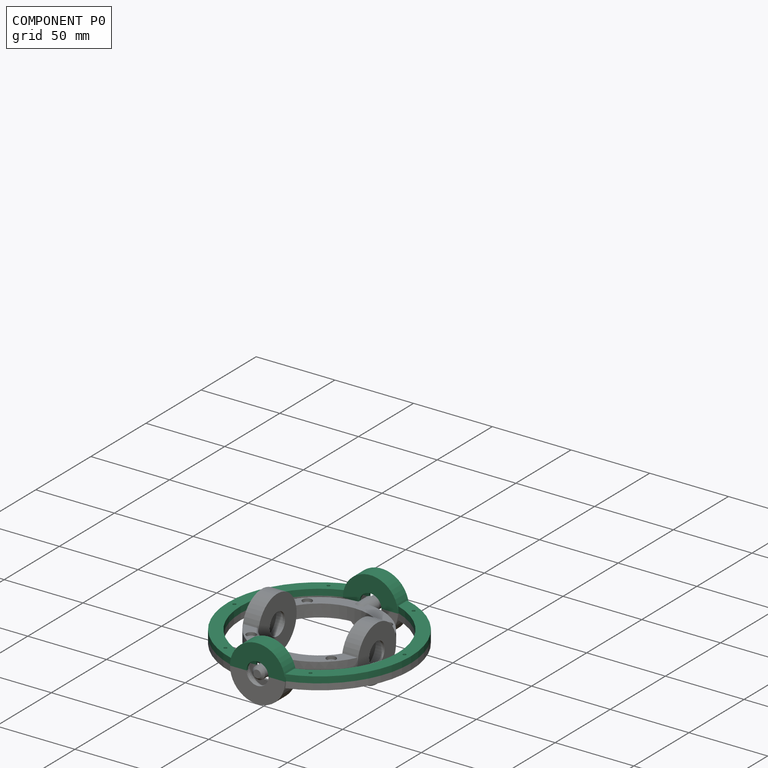
[diagram: component P0 — assembled]
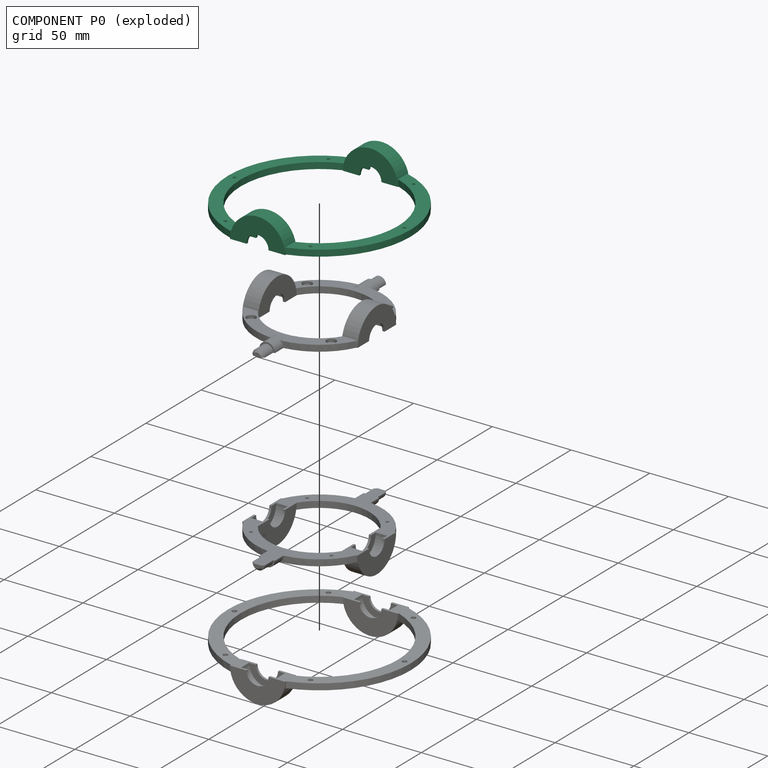
[diagram: component P0 — exploded]
COMPONENT P0 — recipe-attached (CADFS 00322569, mesh-verified: the recipe's output STEP matches this component's geometry to below the mesh-comparison resolution (tessellation chordal tolerance ~0.244 mm)).
Held by: REVOLUTE mate "Revolute 1" to P2; PLANAR mate "Planar 1" to P2; REVOLUTE mate "Revolute 2" to P2.
Construction recipe (FeatureScript — the CAD program that rebuilds this solid; sketch coordinates are in the units given by the * unit suffixes, e.g. mm):

FeatureScript 1511;
import(path : "onshape/std/geometry.fs", version : "1511.0");
import(path : "onshape/std/common.fs", version : "1511.0");
const mm = millimeter;
const VERTEX = EntityType.VERTEX;
const EDGE = EntityType.EDGE;
const FACE = EntityType.FACE;
const BODY = EntityType.BODY;
function v(x, y){return vector(x, y);}
function OD(order){return orderDisambiguation(order);}
function OSD(set){return originalSetDisambiguation(set);}
function TD(topology){return topologyDisambiguation(topology);}
function TDD(query){return trueDependencyDisambiguation(query);}
function sQuery(a, b, c) {return sketchEntityQuery(a, b, c);}

annotation { "Feature Type Name" : "Feature", "Feature Type Description" : "" }
export const myFeature = defineFeature(function(context is Context, id is Id, definition is map)
    precondition{}
    {
        {
            var Q0;
            Q0=qCreatedBy(makeId("Top.planeOp"),FACE);
            var sketch = newSketch(context, id + "F0", { "sketchPlane" : qUnion([Q0])});
            skCircle(sketch, "E0", {"center": v(0, 0) * mm, "radius": 50 * mm});
            skCircle(sketch, "E1", {"center": v(0, 0) * mm, "radius": 58 * mm});
            skSolve(sketch);
        }
        {
            var Q0;
            Q0=qSketchRegion(id+"F0",true);
            extrude(context, id + "F1", {"entities" : qUnion([Q0]), "depth" : 4 * mm, "hasSecondDirection" : true, "secondDirectionOppositeDirection" : true, "secondDirectionDepth" : 4 * mm});
        }
        {
            var Q0;
            Q0=qCreatedBy(makeId("Front.planeOp"),FACE);
            cPlane(context, id + "F2", {"entities" : qUnion([Q0]), "cplaneType" : CPlaneType.OFFSET, "offset" : 54.8 * mm, "width" : 150 * mm, "height" : 150 * mm});
        }
        {
            var Q0;
            Q0=qCreatedBy(id+"F2.planeOp",FACE);
            var sketch = newSketch(context, id + "F3", { "sketchPlane" : qUnion([Q0])});
            skCircle(sketch, "E2", {"center": v(0, 0) * mm, "radius": 11.35 * mm});
            skCircle(sketch, "E3", {"center": v(0, 0) * mm, "radius": 17.5 * mm});
            skSolve(sketch);
        }
        {
            var Q0;
            Q0=makeQuery(id+"F3.imprint","IMPRINT",FACE,{"disambiguationData":[TD([[makeQuery(id+"F3.imprint","IMPRINT",EDGE,{"derivedFrom":sQuery(id+"F3.wireOp",EDGE,"E2")}),1.0]])]});
            var Q1;
            Q1=makeQuery(id+"F3.imprint","IMPRINT",FACE,{"disambiguationData":[TD([[makeQuery(id+"F3.imprint","IMPRINT",EDGE,{"derivedFrom":sQuery(id+"F3.wireOp",EDGE,"E2")}),-1.0]])]});
            extrude(context, id + "F4", {"entities" : qUnion([Q0, Q1]), "operationType" : NewBodyOperationType.REMOVE, "oppositeDirection" : true, "depth" : 25 * mm, "hasSecondDirection" : true, "secondDirectionOppositeDirection" : false, "secondDirectionDepth" : 25 * mm});
        }
        {
            var Q0;
            Q0=makeQuery(id+"F3.imprint","IMPRINT",FACE,{"disambiguationData":[TD([[makeQuery(id+"F3.imprint","IMPRINT",EDGE,{"derivedFrom":sQuery(id+"F3.wireOp",EDGE,"E2")}),-1.0]])]});
            extrude(context, id + "F5", {"entities" : qUnion([Q0]), "operationType" : NewBodyOperationType.ADD, "oppositeDirection" : true, "depth" : 7.2 * mm});
        }
        {
            var Q0;
            Q0=makeQuery(id+"F5.opExtrude","CAP_FACE",FACE,{"disambiguationData":[OSD([sQuery(id+"F3.wireOp",EDGE,"E2"),sQuery(id+"F3.wireOp",EDGE,"E3")])],"isStart":true});
            var sketch = newSketch(context, id + "F6", { "sketchPlane" : qUnion([Q0])});
            skCircle(sketch, "E4", {"center": v(0, 0) * mm, "radius": 7 * mm});
            skCircle(sketch, "E5", {"center": v(0, 0) * mm, "radius": 17.5 * mm});
            skSolve(sketch);
        }
        {
            var Q0;
            Q0=makeQuery(id+"F6.imprint","IMPRINT",FACE,{"disambiguationData":[TD([[makeQuery(id+"F6.imprint","IMPRINT",EDGE,{"derivedFrom":sQuery(id+"F6.wireOp",EDGE,"E4")}),-1.0]])]});
            var Q1;
            Q1=makeQuery(id+"F6.imprint","IMPRINT",FACE,{"disambiguationData":[TD([[makeQuery(id+"F6.imprint","IMPRINT",EDGE,{"derivedFrom":sQuery(id+"F6.wireOp",EDGE,"E5")}),1.0]])]});
            extrude(context, id + "F7", {"entities" : qUnion([Q0, Q1]), "operationType" : NewBodyOperationType.ADD, "depth" : 1.4 * mm});
        }
        {
            var Q0;
            Q0=makeQuery(id+"F5.opExtrude","CAP_FACE",FACE,{"disambiguationData":[OSD([sQuery(id+"F3.wireOp",EDGE,"E2"),sQuery(id+"F3.wireOp",EDGE,"E3")])],"isStart":false});
            var sketch = newSketch(context, id + "F8", { "sketchPlane" : qUnion([Q0])});
            skCircle(sketch, "E6", {"center": v(0, 0) * mm, "radius": 7 * mm});
            skCircle(sketch, "E7", {"center": v(0, 0) * mm, "radius": 17.5 * mm});
            skSolve(sketch);
        }
        {
            var Q0;
            Q0=makeQuery(id+"F8.imprint","IMPRINT",FACE,{"disambiguationData":[TD([[makeQuery(id+"F8.imprint","IMPRINT",EDGE,{"derivedFrom":sQuery(id+"F8.wireOp",EDGE,"E7")}),-1.0]])]});
            var Q1;
            Q1=makeQuery(id+"F8.imprint","IMPRINT",FACE,{"disambiguationData":[TD([[makeQuery(id+"F8.imprint","IMPRINT",EDGE,{"derivedFrom":sQuery(id+"F8.wireOp",EDGE,"E6")}),-1.0]])]});
            extrude(context, id + "F9", {"entities" : qUnion([Q0, Q1]), "operationType" : NewBodyOperationType.ADD, "depth" : 1.4 * mm});
        }
        {
            var Q0;
            Q0=qCreatedBy(makeId("Front.planeOp"),FACE);
            cPlane(context, id + "F10", {"entities" : qUnion([Q0]), "cplaneType" : CPlaneType.OFFSET, "offset" : 54.8 * mm, "oppositeDirection" : true, "width" : 150 * mm, "height" : 150 * mm});
        }
        {
            var Q0;
            Q0=qCreatedBy(id+"F10.planeOp",FACE);
            var sketch = newSketch(context, id + "F11", { "sketchPlane" : qUnion([Q0])});
            skCircle(sketch, "E8", {"center": v(0, 0) * mm, "radius": 17.5 * mm});
            skCircle(sketch, "E9", {"center": v(0, 0) * mm, "radius": 11.35 * mm});
            skSolve(sketch);
        }
        {
            var Q0;
            Q0=makeQuery(id+"F11.imprint","IMPRINT",FACE,{"disambiguationData":[TD([[makeQuery(id+"F11.imprint","IMPRINT",EDGE,{"derivedFrom":sQuery(id+"F11.wireOp",EDGE,"E8")}),1.0]])]});
            var Q1;
            Q1=makeQuery(id+"F11.imprint","IMPRINT",FACE,{"disambiguationData":[TD([[makeQuery(id+"F11.imprint","IMPRINT",EDGE,{"derivedFrom":sQuery(id+"F11.wireOp",EDGE,"E9")}),1.0]])]});
            extrude(context, id + "F12", {"entities" : qUnion([Q0, Q1]), "operationType" : NewBodyOperationType.REMOVE, "depth" : 25 * mm, "hasSecondDirection" : true, "secondDirectionOppositeDirection" : true, "secondDirectionDepth" : 25 * mm});
        }
        {
            var Q0;
            Q0=makeQuery(id+"F11.imprint","IMPRINT",FACE,{"disambiguationData":[TD([[makeQuery(id+"F11.imprint","IMPRINT",EDGE,{"derivedFrom":sQuery(id+"F11.wireOp",EDGE,"E8")}),1.0]])]});
            extrude(context, id + "F13", {"entities" : qUnion([Q0]), "operationType" : NewBodyOperationType.ADD, "depth" : 7.2 * mm});
        }
        {
            var Q0;
            Q0=makeQuery(id+"F13.opExtrude","CAP_FACE",FACE,{"disambiguationData":[OSD([sQuery(id+"F11.wireOp",EDGE,"E8"),sQuery(id+"F11.wireOp",EDGE,"E9")])],"isStart":true});
            var sketch = newSketch(context, id + "F14", { "sketchPlane" : qUnion([Q0])});
            skCircle(sketch, "E10", {"center": v(0, 0) * mm, "radius": 7 * mm});
            skCircle(sketch, "E11", {"center": v(0, 0) * mm, "radius": 17.5 * mm});
            skSolve(sketch);
        }
        {
            var Q0;
            Q0=makeQuery(id+"F14.imprint","IMPRINT",FACE,{"disambiguationData":[TD([[makeQuery(id+"F14.imprint","IMPRINT",EDGE,{"derivedFrom":makeQuery(id+"F13.opExtrude","CAP_EDGE",EDGE,{"disambiguationData":[OSD([sQuery(id+"F11.wireOp",EDGE,"E9")])],"isStart":true})}),1.0]])]});
            var Q1;
            Q1=makeQuery(id+"F14.imprint","IMPRINT",FACE,{"disambiguationData":[TD([[makeQuery(id+"F14.imprint","IMPRINT",EDGE,{"derivedFrom":sQuery(id+"F14.wireOp",EDGE,"E10")}),-1.0]])]});
            extrude(context, id + "F15", {"entities" : qUnion([Q0, Q1]), "operationType" : NewBodyOperationType.ADD, "depth" : 1.4 * mm});
        }
        {
            var Q0;
            Q0=makeQuery(id+"F13.opExtrude","CAP_FACE",FACE,{"disambiguationData":[OSD([sQuery(id+"F11.wireOp",EDGE,"E8"),sQuery(id+"F11.wireOp",EDGE,"E9")])],"isStart":false});
            var sketch = newSketch(context, id + "F16", { "sketchPlane" : qUnion([Q0])});
            skCircle(sketch, "E12", {"center": v(0, 0) * mm, "radius": 7 * mm});
            skCircle(sketch, "E13", {"center": v(0, 0) * mm, "radius": 17.5 * mm});
            skSolve(sketch);
        }
        {
            var Q0;
            Q0=makeQuery(id+"F16.imprint","IMPRINT",FACE,{"disambiguationData":[TD([[makeQuery(id+"F16.imprint","IMPRINT",EDGE,{"derivedFrom":sQuery(id+"F16.wireOp",EDGE,"E12")}),-1.0]])]});
            var Q1;
            Q1=makeQuery(id+"F16.imprint","IMPRINT",FACE,{"disambiguationData":[TD([[makeQuery(id+"F16.imprint","IMPRINT",EDGE,{"derivedFrom":sQuery(id+"F16.wireOp",EDGE,"E13")}),1.0]])]});
            extrude(context, id + "F17", {"entities" : qUnion([Q0, Q1]), "operationType" : NewBodyOperationType.ADD, "depth" : 1.4 * mm});
        }
        {
            var Q0;
            Q0=makeQuery(id+"F12.boolean.opBoolean","SPLIT",FACE,{"disambiguationData":[OD(0.0)],"derivedFrom":makeQuery(id+"F1.opExtrude","CAP_FACE",FACE,{"disambiguationData":[OSD([sQuery(id+"F0.wireOp",EDGE,"E0"),sQuery(id+"F0.wireOp",EDGE,"E1")])],"isStart":false})});
            var sketch = newSketch(context, id + "F18", { "sketchPlane" : qUnion([Q0])});
            skLineSegment(sketch, "E14", {"start": v(0, 0) * mm, "end": v(-50, 0) * mm, "construction": true});
            skLineSegment(sketch, "E15", {"start": v(-50, 0) * mm, "end": v(-58, 0) * mm, "construction": true});
            skCircle(sketch, "E16", {"center": v(-54, 0) * mm, "radius": 3 * mm});
            skCircle(sketch, "E17", {"center": v(-54, 0) * mm, "radius": 1.5 * mm});
            skCircle(sketch, "E18", {"center": v(-54, 0) * mm, "radius": 1 * mm});
            skCircle(sketch, "E19.1.0", {"center": v(-27, -46.77) * mm, "radius": 3 * mm});
            skCircle(sketch, "E19.1.1", {"center": v(-27, -46.77) * mm, "radius": 1.5 * mm});
            skCircle(sketch, "E19.1.2", {"center": v(-27, -46.77) * mm, "radius": 1 * mm});
            skCircle(sketch, "E19.2.0", {"center": v(27, -46.77) * mm, "radius": 3 * mm});
            skCircle(sketch, "E19.2.1", {"center": v(27, -46.77) * mm, "radius": 1.5 * mm});
            skCircle(sketch, "E19.2.2", {"center": v(27, -46.77) * mm, "radius": 1 * mm});
            skCircle(sketch, "E19.3.0", {"center": v(54, 0) * mm, "radius": 3 * mm});
            skCircle(sketch, "E19.3.1", {"center": v(54, 0) * mm, "radius": 1.5 * mm});
            skCircle(sketch, "E19.3.2", {"center": v(54, 0) * mm, "radius": 1 * mm});
            skCircle(sketch, "E19.4.0", {"center": v(27, 46.77) * mm, "radius": 3 * mm});
            skCircle(sketch, "E19.4.1", {"center": v(27, 46.77) * mm, "radius": 1.5 * mm});
            skCircle(sketch, "E19.4.2", {"center": v(27, 46.77) * mm, "radius": 1 * mm});
            skCircle(sketch, "E19.5.0", {"center": v(-27, 46.77) * mm, "radius": 3 * mm});
            skCircle(sketch, "E19.5.1", {"center": v(-27, 46.77) * mm, "radius": 1.5 * mm});
            skCircle(sketch, "E19.5.2", {"center": v(-27, 46.77) * mm, "radius": 1 * mm});
            skPoint(sketch, "E19.center", {"position": v(0, 0) * mm});
            skSolve(sketch);
        }
        {
            var Q0;
            Q0=makeQuery(id+"F18.imprint","IMPRINT",FACE,{"disambiguationData":[TD([[makeQuery(id+"F18.imprint","IMPRINT",EDGE,{"derivedFrom":sQuery(id+"F18.wireOp",EDGE,"E18")}),1.0]])]});
            var Q1;
            Q1=makeQuery(id+"F18.imprint","IMPRINT",FACE,{"disambiguationData":[TD([[makeQuery(id+"F18.imprint","IMPRINT",EDGE,{"derivedFrom":sQuery(id+"F18.wireOp",EDGE,"E19.5.2")}),1.0]])]});
            var Q2;
            Q2=makeQuery(id+"F18.imprint","IMPRINT",FACE,{"disambiguationData":[TD([[makeQuery(id+"F18.imprint","IMPRINT",EDGE,{"derivedFrom":sQuery(id+"F18.wireOp",EDGE,"E19.4.2")}),1.0]])]});
            var Q3;
            Q3=makeQuery(id+"F18.imprint","IMPRINT",FACE,{"disambiguationData":[TD([[makeQuery(id+"F18.imprint","IMPRINT",EDGE,{"derivedFrom":sQuery(id+"F18.wireOp",EDGE,"E19.3.2")}),1.0]])]});
            var Q4;
            Q4=makeQuery(id+"F18.imprint","IMPRINT",FACE,{"disambiguationData":[TD([[makeQuery(id+"F18.imprint","IMPRINT",EDGE,{"derivedFrom":sQuery(id+"F18.wireOp",EDGE,"E19.2.2")}),1.0]])]});
            var Q5;
            Q5=makeQuery(id+"F18.imprint","IMPRINT",FACE,{"disambiguationData":[TD([[makeQuery(id+"F18.imprint","IMPRINT",EDGE,{"derivedFrom":sQuery(id+"F18.wireOp",EDGE,"E19.1.2")}),1.0]])]});
            extrude(context, id + "F19", {"entities" : qUnion([Q0, Q1, Q2, Q3, Q4, Q5]), "operationType" : NewBodyOperationType.REMOVE, "oppositeDirection" : true, "depth" : 25 * mm});
        }
        {
            var Q0;
            Q0=makeQuery(id+"F18.imprint","IMPRINT",FACE,{"disambiguationData":[TD([[makeQuery(id+"F18.imprint","IMPRINT",EDGE,{"derivedFrom":sQuery(id+"F18.wireOp",EDGE,"E17")}),1.0]])]});
            var Q1;
            Q1=makeQuery(id+"F18.imprint","IMPRINT",FACE,{"disambiguationData":[TD([[makeQuery(id+"F18.imprint","IMPRINT",EDGE,{"derivedFrom":sQuery(id+"F18.wireOp",EDGE,"E19.5.1")}),1.0]])]});
            var Q2;
            Q2=makeQuery(id+"F18.imprint","IMPRINT",FACE,{"disambiguationData":[TD([[makeQuery(id+"F18.imprint","IMPRINT",EDGE,{"derivedFrom":sQuery(id+"F18.wireOp",EDGE,"E19.4.1")}),1.0]])]});
            var Q3;
            Q3=makeQuery(id+"F18.imprint","IMPRINT",FACE,{"disambiguationData":[TD([[makeQuery(id+"F18.imprint","IMPRINT",EDGE,{"derivedFrom":sQuery(id+"F18.wireOp",EDGE,"E19.3.1")}),1.0]])]});
            var Q4;
            Q4=makeQuery(id+"F18.imprint","IMPRINT",FACE,{"disambiguationData":[TD([[makeQuery(id+"F18.imprint","IMPRINT",EDGE,{"derivedFrom":sQuery(id+"F18.wireOp",EDGE,"E19.2.1")}),1.0]])]});
            var Q5;
            Q5=makeQuery(id+"F18.imprint","IMPRINT",FACE,{"disambiguationData":[TD([[makeQuery(id+"F18.imprint","IMPRINT",EDGE,{"derivedFrom":sQuery(id+"F18.wireOp",EDGE,"E19.1.1")}),1.0]])]});
            extrude(context, id + "F20", {"entities" : qUnion([Q0, Q1, Q2, Q3, Q4, Q5]), "operationType" : NewBodyOperationType.REMOVE, "oppositeDirection" : true, "depth" : 4 * mm});
        }
        {
            var Q0;
            Q0=makeQuery(id+"F18.imprint","IMPRINT",FACE,{"disambiguationData":[TD([[makeQuery(id+"F18.imprint","IMPRINT",EDGE,{"derivedFrom":sQuery(id+"F18.wireOp",EDGE,"E16")}),1.0]])]});
            var Q1;
            Q1=makeQuery(id+"F18.imprint","IMPRINT",FACE,{"disambiguationData":[TD([[makeQuery(id+"F18.imprint","IMPRINT",EDGE,{"derivedFrom":sQuery(id+"F18.wireOp",EDGE,"E19.1.0")}),1.0]])]});
            var Q2;
            Q2=makeQuery(id+"F18.imprint","IMPRINT",FACE,{"disambiguationData":[TD([[makeQuery(id+"F18.imprint","IMPRINT",EDGE,{"derivedFrom":sQuery(id+"F18.wireOp",EDGE,"E19.2.0")}),1.0]])]});
            var Q3;
            Q3=makeQuery(id+"F18.imprint","IMPRINT",FACE,{"disambiguationData":[TD([[makeQuery(id+"F18.imprint","IMPRINT",EDGE,{"derivedFrom":sQuery(id+"F18.wireOp",EDGE,"E19.3.0")}),1.0]])]});
            var Q4;
            Q4=makeQuery(id+"F18.imprint","IMPRINT",FACE,{"disambiguationData":[TD([[makeQuery(id+"F18.imprint","IMPRINT",EDGE,{"derivedFrom":sQuery(id+"F18.wireOp",EDGE,"E19.4.0")}),1.0]])]});
            var Q5;
            Q5=makeQuery(id+"F18.imprint","IMPRINT",FACE,{"disambiguationData":[TD([[makeQuery(id+"F18.imprint","IMPRINT",EDGE,{"derivedFrom":sQuery(id+"F18.wireOp",EDGE,"E19.5.0")}),1.0]])]});
            extrude(context, id + "F21", {"entities" : qUnion([Q0, Q1, Q2, Q3, Q4, Q5]), "operationType" : NewBodyOperationType.REMOVE, "oppositeDirection" : true, "depth" : 2 * mm});
        }
        {
            var Q0;
            Q0=qCreatedBy(makeId("Top.planeOp"),FACE);
            var sketch = newSketch(context, id + "F22", { "sketchPlane" : qUnion([Q0])});
            skCircle(sketch, "E20", {"center": v(0, 0) * mm, "radius": 78.22 * mm});
            skSolve(sketch);
        }
        {
            var Q0;
            Q0 = qSketchRegion(id + "F22", true);
            extrude(context, id + "F23", {"entities" : qUnion([Q0]), "operationType" : NewBodyOperationType.REMOVE, "depth" : 25 * mm});
        }
        {
            var Q0;
            Q0=qCreatedBy(makeId("Top.planeOp"),FACE);
            var sketch = newSketch(context, id + "F24", { "sketchPlane" : qUnion([Q0])});
            skLineSegment(sketch, "E21", {"start": v(0, 0) * mm, "end": v(0, 16.85) * mm, "construction": true});
            skSolve(sketch);
        }
        {
            var Q0;
            Q0=makeQuery(id+"F1.opExtrude","SWEPT_BODY",BODY,{"disambiguationData":[OSD([sQuery(id+"F0.wireOp",EDGE,"E0"),sQuery(id+"F0.wireOp",EDGE,"E1")])]});
            var Q1;
            Q1=sQuery(id+"F24.wireOp",EDGE,"E21");
            transform(context, id + "F25", {"entities" : qUnion([Q0]), "transformType" : TransformType.ROTATION, "transformAxis" : qUnion([Q1]), "angle" : 180 * degree, "makeCopy" : false});
        }
    });
